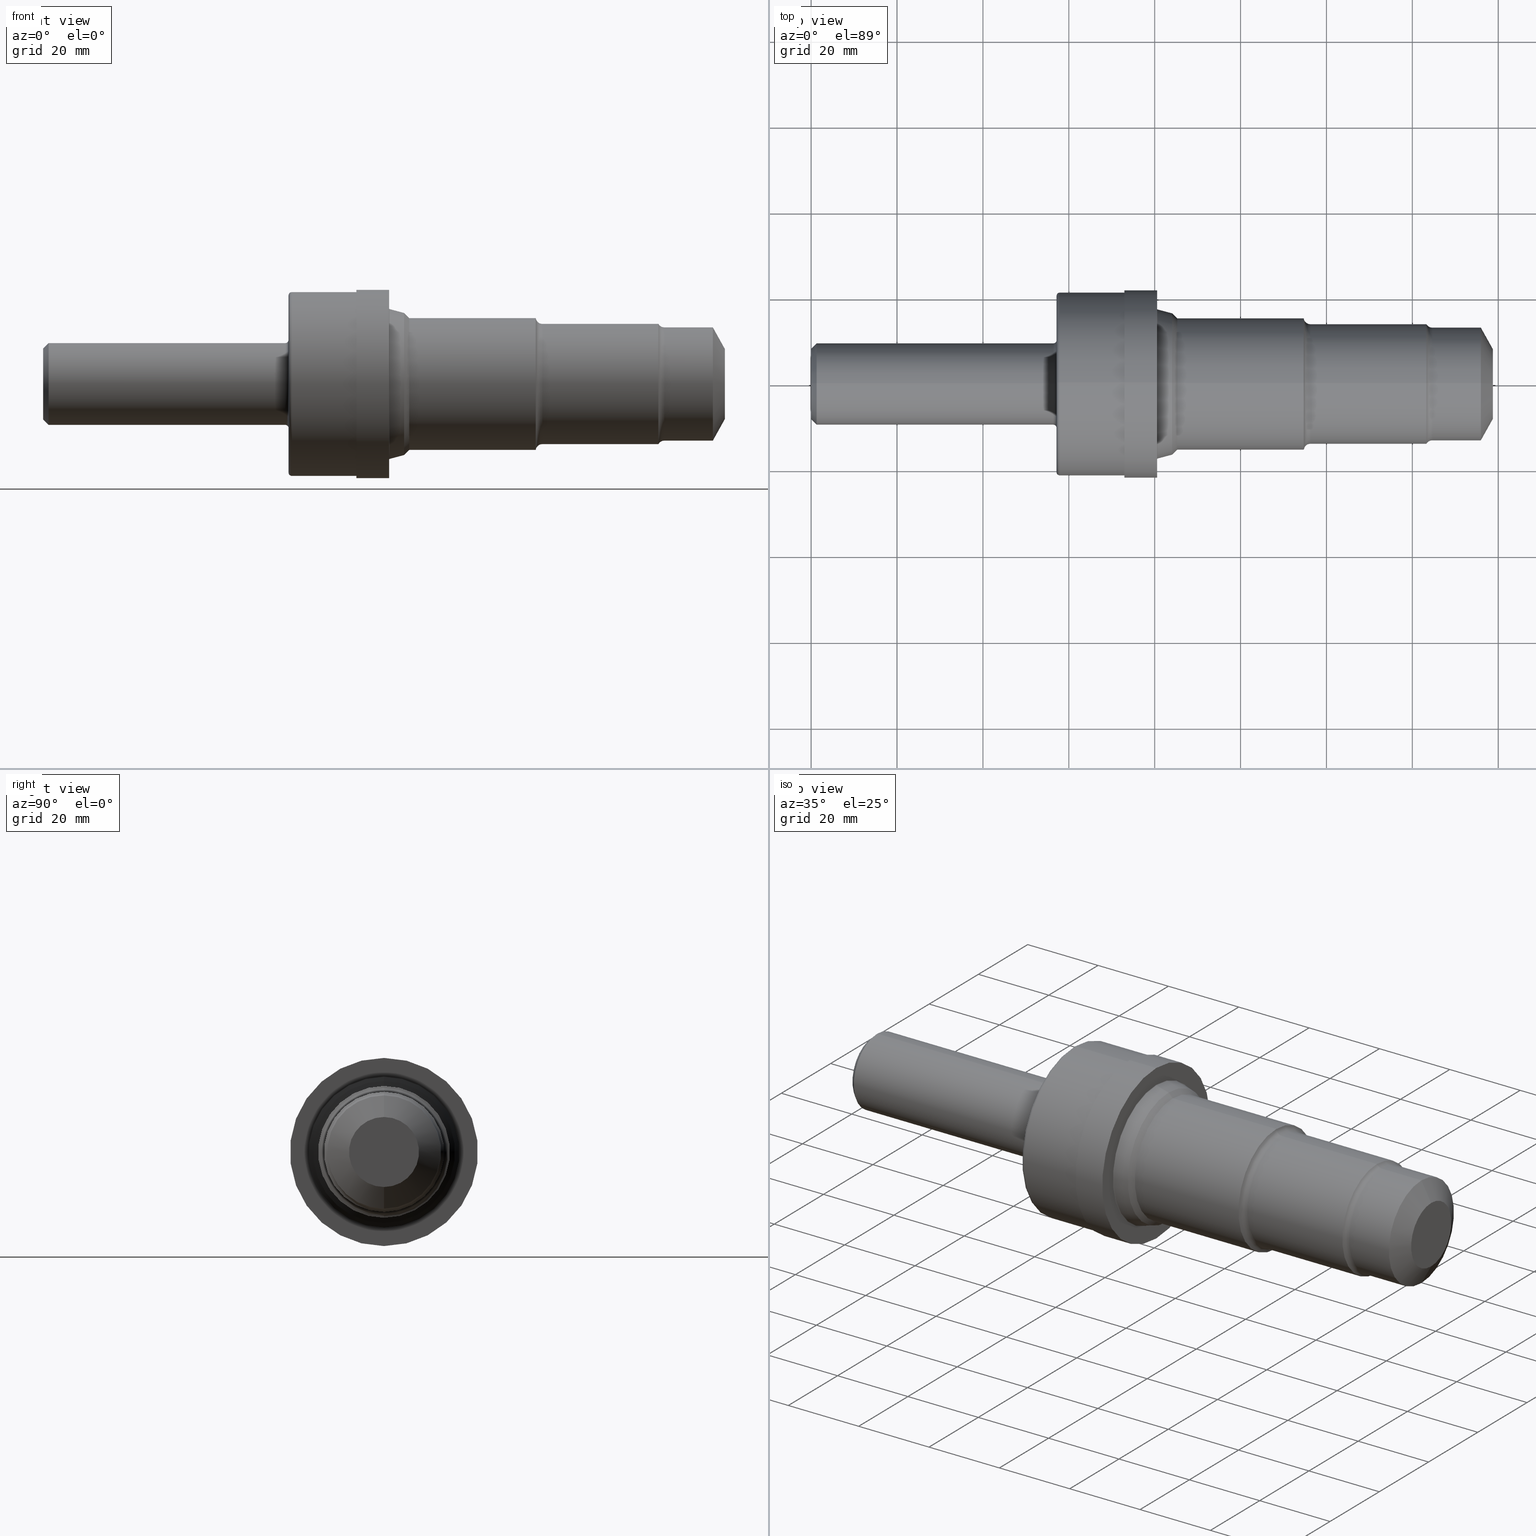
[diagram: canonical four-view strip — front | top / right | iso, engineering-drawing reading convention]
A machine part, canonical four-view strip (front | top / right | iso — engineering-drawing reading convention). The complete STEP part file that produces these views, byte-faithful:
ISO-10303-21;
HEADER;
FILE_DESCRIPTION (( 'STEP AP214' ),
    '1' );
FILE_NAME ('C-16-3-ROUGH-X8.STEP',
    '2020-02-03T22:20:44',
    ( '' ),
    ( '' ),
    'SwSTEP 2.0',
    'SolidWorks 2018',
    '' );
FILE_SCHEMA (( 'AUTOMOTIVE_DESIGN' ));
ENDSEC;

DATA;
#1 = CARTESIAN_POINT ( 'NONE',  ( 0.0000000000000000000, 1.056257864264592206E-16, -0.8625000000000000444 ) ) ;
#2 = AXIS2_PLACEMENT_3D ( 'NONE', #835, #830, #314 ) ;
#3 = EDGE_CURVE ( 'NONE', #258, #892, #356, .T. ) ;
#4 = PRODUCT_DEFINITION_FORMATION_WITH_SPECIFIED_SOURCE ( 'ANY', '', #264, .NOT_KNOWN. ) ;
#5 = ORIENTED_EDGE ( 'NONE', *, *, #702, .T. ) ;
#6 = ORIENTED_EDGE ( 'NONE', *, *, #497, .F. ) ;
#7 = CARTESIAN_POINT ( 'NONE',  ( 0.0000000000000000000, 0.0000000000000000000, 0.6045000000000000373 ) ) ;
#8 = ORIENTED_EDGE ( 'NONE', *, *, #888, .T. ) ;
#9 = TOROIDAL_SURFACE ( 'NONE', #534, 0.6941386159038315240, 0.007999999999999691386 ) ;
#10 = AXIS2_PLACEMENT_3D ( 'NONE', #510, #823, #736 ) ;
#11 = EDGE_CURVE ( 'NONE', #197, #498, #913, .T. ) ;
#12 = EDGE_LOOP ( 'NONE', ( #230, #833, #662, #190 ) ) ;
#13 = SURFACE_STYLE_USAGE ( .BOTH. , #384 ) ;
#14 = EDGE_LOOP ( 'NONE', ( #623, #467, #127, #663 ) ) ;
#15 = CARTESIAN_POINT ( 'NONE',  ( 0.0000000000000000000, 0.0000000000000000000, 0.0000000000000000000 ) ) ;
#16 = EDGE_CURVE ( 'NONE', #498, #197, #157, .T. ) ;
#17 = CIRCLE ( 'NONE', #626, 0.5509000000000000563 ) ;
#18 = ORIENTED_EDGE ( 'NONE', *, *, #198, .F. ) ;
#19 = DIRECTION ( 'NONE',  ( -1.000000000000000000, -0.0000000000000000000, -0.0000000000000000000 ) ) ;
#20 = AXIS2_PLACEMENT_3D ( 'NONE', #15, #247, #102 ) ;
#21 = VECTOR ( 'NONE', #827, 39.37007874015748854 ) ;
#22 = DIRECTION ( 'NONE',  ( 0.0000000000000000000, 0.0000000000000000000, 1.000000000000000000 ) ) ;
#23 = CARTESIAN_POINT ( 'NONE',  ( 3.310000000000000497, 8.189422687484781265E-17, -0.6510230114445050287 ) ) ;
#24 = DIRECTION ( 'NONE',  ( 1.000000000000000000, 0.0000000000000000000, 0.0000000000000000000 ) ) ;
#25 = PRODUCT_DEFINITION_SHAPE ( 'NONE', 'NONE',  #226 ) ;
#26 = DIRECTION ( 'NONE',  ( 0.0000000000000000000, 0.0000000000000000000, 1.000000000000000000 ) ) ;
#27 = CONICAL_SURFACE ( 'NONE', #883, 0.3748500000000000165, 0.7853981633974463916 ) ;
#28 = DIRECTION ( 'NONE',  ( 0.0000000000000000000, 0.0000000000000000000, -1.000000000000000000 ) ) ;
#29 = ORIENTED_EDGE ( 'NONE', *, *, #584, .T. ) ;
#30 = EDGE_CURVE ( 'NONE', #197, #34, #539, .T. ) ;
#31 = ADVANCED_FACE ( 'NONE', ( #889 ), #116, .T. ) ;
#32 = ORIENTED_EDGE ( 'NONE', *, *, #121, .F. ) ;
#33 = ORIENTED_EDGE ( 'NONE', *, *, #713, .F. ) ;
#34 = VERTEX_POINT ( 'NONE', #536 ) ;
#35 = CONICAL_SURFACE ( 'NONE', #254, 0.6510230114445050287, 0.2617993877991517948 ) ;
#36 = EDGE_CURVE ( 'NONE', #123, #223, #493, .T. ) ;
#37 = CARTESIAN_POINT ( 'NONE',  ( 5.694979162646339077, 0.0000000000000000000, 0.0000000000000000000 ) ) ;
#38 = CARTESIAN_POINT ( 'NONE',  ( 0.05000000000000000278, 0.0000000000000000000, 0.0000000000000000000 ) ) ;
#39 = CYLINDRICAL_SURFACE ( 'NONE', #450, 0.3748500000000002386 ) ;
#40 = AXIS2_PLACEMENT_3D ( 'NONE', #665, #158, #558 ) ;
#41 = CYLINDRICAL_SURFACE ( 'NONE', #721, 0.5508999999999999453 ) ;
#42 = AXIS2_PLACEMENT_3D ( 'NONE', #111, #408, #776 ) ;
#43 = ADVANCED_FACE ( 'NONE', ( #136 ), #869, .T. ) ;
#44 = CARTESIAN_POINT ( 'NONE',  ( 2.250000000000000000, 0.0000000000000000000, 0.8125000000000000000 ) ) ;
#45 = LINE ( 'NONE', #587, #810 ) ;
#46 = AXIS2_PLACEMENT_3D ( 'NONE', #529, #19, #458 ) ;
#47 = CARTESIAN_POINT ( 'NONE',  ( 2.250000000000000000, 4.957982566348066292E-17, -0.4048500000000005983 ) ) ;
#48 = ADVANCED_FACE ( 'NONE', ( #310 ), #705, .F. ) ;
#49 = ORIENTED_EDGE ( 'NONE', *, *, #658, .F. ) ;
#50 = EDGE_LOOP ( 'NONE', ( #108, #73 ) ) ;
#51 = CARTESIAN_POINT ( 'NONE',  ( 3.180000000000000604, 8.500746341312013096E-17, -0.6941386159038315240 ) ) ;
#52 = SURFACE_STYLE_FILL_AREA ( #216 ) ;
#53 = EDGE_LOOP ( 'NONE', ( #777, #379, #921, #906 ) ) ;
#54 = AXIS2_PLACEMENT_3D ( 'NONE', #748, #740, #812 ) ;
#55 = ORIENTED_EDGE ( 'NONE', *, *, #822, .F. ) ;
#56 = CARTESIAN_POINT ( 'NONE',  ( 2.220000000000000195, 0.0000000000000000000, 0.0000000000000000000 ) ) ;
#57 = AXIS2_PLACEMENT_3D ( 'NONE', #583, #532, #941 ) ;
#58 = ORIENTED_EDGE ( 'NONE', *, *, #853, .T. ) ;
#59 = VECTOR ( 'NONE', #387, 39.37007874015748143 ) ;
#60 = DIRECTION ( 'NONE',  ( 0.0000000000000000000, 0.0000000000000000000, 1.000000000000000000 ) ) ;
#61 = DIRECTION ( 'NONE',  ( 0.0000000000000000000, 0.0000000000000000000, 1.000000000000000000 ) ) ;
#62 = CARTESIAN_POINT ( 'NONE',  ( 4.577428332225449203, 0.0000000000000000000, 0.0000000000000000000 ) ) ;
#63 = AXIS2_PLACEMENT_3D ( 'NONE', #894, #515, #453 ) ;
#64 = CARTESIAN_POINT ( 'NONE',  ( 5.694979162646339965, 0.0000000000000000000, 0.0000000000000000000 ) ) ;
#65 = EDGE_CURVE ( 'NONE', #818, #842, #728, .T. ) ;
#66 = DIRECTION ( 'NONE',  ( -1.000000000000000000, -0.0000000000000000000, -0.0000000000000000000 ) ) ;
#67 = FACE_OUTER_BOUND ( 'NONE', #369, .T. ) ;
#68 = DIRECTION ( 'NONE',  ( 0.0000000000000000000, 0.0000000000000000000, 1.000000000000000000 ) ) ;
#69 = CARTESIAN_POINT ( 'NONE',  ( 6.250000000000000000, 0.0000000000000000000, 0.3209547469201429193 ) ) ;
#70 = TOROIDAL_SURFACE ( 'NONE', #232, 0.4048500000000005983, 0.02999999999999988440 ) ;
#71 = DIRECTION ( 'NONE',  ( -1.000000000000000000, -0.0000000000000000000, -0.0000000000000000000 ) ) ;
#72 = ORIENTED_EDGE ( 'NONE', *, *, #132, .T. ) ;
#73 = ORIENTED_EDGE ( 'NONE', *, *, #36, .T. ) ;
#74 = CARTESIAN_POINT ( 'NONE',  ( 0.05000000000000000278, 4.590588526603853748E-17, 0.3748500000000000165 ) ) ;
#75 = VERTEX_POINT ( 'NONE', #870 ) ;
#76 = APPLICATION_PROTOCOL_DEFINITION ( 'draft international standard', 'automotive_design', 1998, #98 ) ;
#77 = CARTESIAN_POINT ( 'NONE',  ( 0.05000000000000000278, 0.0000000000000000000, 0.0000000000000000000 ) ) ;
#78 = DIRECTION ( 'NONE',  ( -0.0000000000000000000, 0.0000000000000000000, 1.000000000000000000 ) ) ;
#79 = FILL_AREA_STYLE_COLOUR ( '', #815 ) ;
#80 = CIRCLE ( 'NONE', #851, 0.3748500000000000165 ) ;
#81 = ORIENTED_EDGE ( 'NONE', *, *, #751, .F. ) ;
#82 = ORIENTED_EDGE ( 'NONE', *, *, #409, .T. ) ;
#83 = PLANE ( 'NONE',  #630 ) ;
#84 = AXIS2_PLACEMENT_3D ( 'NONE', #319, #456, #535 ) ;
#85 = EDGE_CURVE ( 'NONE', #34, #521, #677, .T. ) ;
#86 = ORIENTED_EDGE ( 'NONE', *, *, #763, .T. ) ;
#87 = FACE_OUTER_BOUND ( 'NONE', #632, .T. ) ;
#88 = DIRECTION ( 'NONE',  ( 0.0000000000000000000, 0.0000000000000000000, 1.000000000000000000 ) ) ;
#89 = CARTESIAN_POINT ( 'NONE',  ( 4.516000000000000902, 0.0000000000000000000, 0.0000000000000000000 ) ) ;
#90 = CARTESIAN_POINT ( 'NONE',  ( 0.05000000000000000278, 0.0000000000000000000, 0.0000000000000000000 ) ) ;
#91 = ORIENTED_EDGE ( 'NONE', *, *, #856, .F. ) ;
#92 = VERTEX_POINT ( 'NONE', #435 ) ;
#93 = DIRECTION ( 'NONE',  ( 0.0000000000000000000, 0.0000000000000000000, 1.000000000000000000 ) ) ;
#94 = CIRCLE ( 'NONE', #480, 0.8125000000000000000 ) ;
#95 = DIRECTION ( 'NONE',  ( -1.000000000000000000, -0.0000000000000000000, -0.0000000000000000000 ) ) ;
#96 = CIRCLE ( 'NONE', #280, 0.8625000000000000444 ) ;
#97 = AXIS2_PLACEMENT_3D ( 'NONE', #724, #680, #88 ) ;
#98 = APPLICATION_CONTEXT ( 'automotive_design' ) ;
#99 = EDGE_CURVE ( 'NONE', #892, #258, #96, .T. ) ;
#100 = AXIS2_PLACEMENT_3D ( 'NONE', #305, #571, #575 ) ;
#101 = CARTESIAN_POINT ( 'NONE',  ( 3.180000000000000604, 0.0000000000000000000, 0.0000000000000000000 ) ) ;
#102 = DIRECTION ( 'NONE',  ( 0.0000000000000000000, 0.0000000000000000000, 1.000000000000000000 ) ) ;
#103 = ORIENTED_EDGE ( 'NONE', *, *, #621, .T. ) ;
#104 = AXIS2_PLACEMENT_3D ( 'NONE', #378, #577, #585 ) ;
#105 = AXIS2_PLACEMENT_3D ( 'NONE', #306, #671, #875 ) ;
#106 = LINE ( 'NONE', #7, #858 ) ;
#107 = AXIS2_PLACEMENT_3D ( 'NONE', #364, #556, #654 ) ;
#108 = ORIENTED_EDGE ( 'NONE', *, *, #600, .T. ) ;
#109 = AXIS2_PLACEMENT_3D ( 'NONE', #89, #437, #235 ) ;
#110 = FACE_BOUND ( 'NONE', #50, .T. ) ;
#111 = CARTESIAN_POINT ( 'NONE',  ( 5.694979162646339077, 0.0000000000000000000, 0.0000000000000000000 ) ) ;
#112 = DIRECTION ( 'NONE',  ( -1.000000000000000000, -0.0000000000000000000, -0.0000000000000000000 ) ) ;
#113 = VERTEX_POINT ( 'NONE', #44 ) ;
#114 = CARTESIAN_POINT ( 'NONE',  ( 6.250000000000000000, 0.0000000000000000000, 0.0000000000000000000 ) ) ;
#115 = VECTOR ( 'NONE', #196, 39.37007874015748143 ) ;
#116 = CONICAL_SURFACE ( 'NONE', #948, 0.3209547469201429193, 1.064650843716543616 ) ;
#117 = DIRECTION ( 'NONE',  ( 0.7071067811865489050, 0.0000000000000000000, -0.7071067811865461294 ) ) ;
#118 = ORIENTED_EDGE ( 'NONE', *, *, #902, .F. ) ;
#119 = DIRECTION ( 'NONE',  ( 0.0000000000000000000, 0.0000000000000000000, 1.000000000000000000 ) ) ;
#120 = CARTESIAN_POINT ( 'NONE',  ( 2.220000000000000195, 0.0000000000000000000, 0.0000000000000000000 ) ) ;
#121 = EDGE_CURVE ( 'NONE', #521, #933, #477, .T. ) ;
#122 = ADVANCED_FACE ( 'NONE', ( #517 ), #651, .F. ) ;
#123 = VERTEX_POINT ( 'NONE', #494 ) ;
#124 = DIRECTION ( 'NONE',  ( 0.0000000000000000000, 0.0000000000000000000, 1.000000000000000000 ) ) ;
#125 = CIRCLE ( 'NONE', #650, 0.8424999999999999156 ) ;
#126 = ADVANCED_FACE ( 'NONE', ( #828 ), #244, .T. ) ;
#127 = ORIENTED_EDGE ( 'NONE', *, *, #30, .T. ) ;
#128 = DIRECTION ( 'NONE',  ( 0.0000000000000000000, 0.0000000000000000000, 1.000000000000000000 ) ) ;
#129 = CARTESIAN_POINT ( 'NONE',  ( 0.0000000000000000000, 1.031764928281644949E-16, -0.8424999999999999156 ) ) ;
#130 = FACE_OUTER_BOUND ( 'NONE', #200, .T. ) ;
#131 = DIRECTION ( 'NONE',  ( 0.0000000000000000000, 0.0000000000000000000, 1.000000000000000000 ) ) ;
#132 = EDGE_CURVE ( 'NONE', #92, #414, #432, .T. ) ;
#133 = CARTESIAN_POINT ( 'NONE',  ( 0.0000000000000000000, 0.0000000000000000000, 0.0000000000000000000 ) ) ;
#134 = ORIENTED_EDGE ( 'NONE', *, *, #621, .F. ) ;
#135 = LINE ( 'NONE', #220, #703 ) ;
#136 = FACE_OUTER_BOUND ( 'NONE', #365, .T. ) ;
#137 = EDGE_CURVE ( 'NONE', #324, #231, #622, .T. ) ;
#138 = VERTEX_POINT ( 'NONE', #346 ) ;
#139 = DIRECTION ( 'NONE',  ( 0.0000000000000000000, -1.000000000000000000, 0.0000000000000000000 ) ) ;
#140 = CARTESIAN_POINT ( 'NONE',  ( 2.279999999999999805, 9.950255243072245579E-17, -0.8125000000000000000 ) ) ;
#141 = DIRECTION ( 'NONE',  ( -1.000000000000000000, -0.0000000000000000000, -0.0000000000000000000 ) ) ;
#142 = DIRECTION ( 'NONE',  ( -1.000000000000000000, -0.0000000000000000000, -0.0000000000000000000 ) ) ;
#143 = DIRECTION ( 'NONE',  ( 0.0000000000000000000, 0.0000000000000000000, 1.000000000000000000 ) ) ;
#144 = EDGE_LOOP ( 'NONE', ( #750, #739, #850, #511 ) ) ;
#145 = CIRCLE ( 'NONE', #109, 0.6045000000000000373 ) ;
#146 = VERTEX_POINT ( 'NONE', #905 ) ;
#147 = UNCERTAINTY_MEASURE_WITH_UNIT (LENGTH_MEASURE( 1.000000000000000082E-05 ), #499, 'distance_accuracy_value', 'NONE');
#148 = AXIS2_PLACEMENT_3D ( 'NONE', #568, #540, #252 ) ;
#149 = CARTESIAN_POINT ( 'NONE',  ( 0.0000000000000000000, 4.284426826817016740E-17, 0.3248500000000002497 ) ) ;
#150 = VECTOR ( 'NONE', #410, 39.37007874015748143 ) ;
#151 = CARTESIAN_POINT ( 'NONE',  ( 3.356523011444505045, 0.0000000000000000000, 0.6045000000000000373 ) ) ;
#152 = DIRECTION ( 'NONE',  ( 0.0000000000000000000, -1.000000000000000000, 0.0000000000000000000 ) ) ;
#153 = AXIS2_PLACEMENT_3D ( 'NONE', #667, #655, #347 ) ;
#154 = EDGE_CURVE ( 'NONE', #271, #730, #269, .T. ) ;
#155 = DIRECTION ( 'NONE',  ( -1.000000000000000000, -0.0000000000000000000, -0.0000000000000000000 ) ) ;
#156 = AXIS2_PLACEMENT_3D ( 'NONE', #649, #638, #171 ) ;
#157 = CIRCLE ( 'NONE', #897, 0.3209547469201429193 ) ;
#158 = DIRECTION ( 'NONE',  ( 1.000000000000000000, 0.0000000000000000000, 0.0000000000000000000 ) ) ;
#159 = AXIS2_PLACEMENT_3D ( 'NONE', #629, #699, #857 ) ;
#160 = LINE ( 'NONE', #947, #734 ) ;
#161 = ADVANCED_FACE ( 'NONE', ( #452 ), #217, .T. ) ;
#162 = VERTEX_POINT ( 'NONE', #549 ) ;
#163 = APPLICATION_CONTEXT ( 'automotive_design' ) ;
#164 = AXIS2_PLACEMENT_3D ( 'NONE', #934, #863, #914 ) ;
#165 = CARTESIAN_POINT ( 'NONE',  ( 2.872000000000000330, 0.0000000000000000000, 0.0000000000000000000 ) ) ;
#166 = EDGE_LOOP ( 'NONE', ( #707, #683, #696, #320 ) ) ;
#167 = FACE_OUTER_BOUND ( 'NONE', #551, .T. ) ;
#168 = CARTESIAN_POINT ( 'NONE',  ( 4.516000000000000902, 0.0000000000000000000, 0.6045000000000000373 ) ) ;
#169 = ORIENTED_EDGE ( 'NONE', *, *, #65, .F. ) ;
#170 = ORIENTED_EDGE ( 'NONE', *, *, #524, .F. ) ;
#171 = DIRECTION ( 'NONE',  ( 0.0000000000000000000, 0.0000000000000000000, -1.000000000000000000 ) ) ;
#172 = FACE_OUTER_BOUND ( 'NONE', #229, .T. ) ;
#173 = DIMENSIONAL_EXPONENTS ( 1.000000000000000000, 0.0000000000000000000, 0.0000000000000000000, 0.0000000000000000000, 0.0000000000000000000, 0.0000000000000000000, 0.0000000000000000000 ) ;
#174 = CARTESIAN_POINT ( 'NONE',  ( 2.250000000000000000, 0.0000000000000000000, 0.0000000000000000000 ) ) ;
#175 = CLOSED_SHELL ( 'NONE', ( #848, #555, #764, #178, #775, #313, #698, #547, #122, #257, #189, #592, #184, #770, #411, #899, #161, #627, #316, #758, #401, #483, #332, #43, #789, #896, #845, #126, #891, #48, #716, #340, #907, #31, #916 ) ) ;
#176 = CARTESIAN_POINT ( 'NONE',  ( 6.140000000000000568, 0.0000000000000000000, 0.0000000000000000000 ) ) ;
#177 = VERTEX_POINT ( 'NONE', #181 ) ;
#178 = ADVANCED_FACE ( 'NONE', ( #849 ), #41, .T. ) ;
#179 = ORIENTED_EDGE ( 'NONE', *, *, #524, .T. ) ;
#180 = VECTOR ( 'NONE', #755, 39.37007874015748854 ) ;
#181 = CARTESIAN_POINT ( 'NONE',  ( 3.310000000000000497, 0.0000000000000000000, 0.6510230114445050287 ) ) ;
#182 = EDGE_LOOP ( 'NONE', ( #433, #478, #134, #270 ) ) ;
#183 = CARTESIAN_POINT ( 'NONE',  ( 3.356523011444505045, 0.0000000000000000000, 0.0000000000000000000 ) ) ;
#184 = ADVANCED_FACE ( 'NONE', ( #413 ), #70, .F. ) ;
#185 = CYLINDRICAL_SURFACE ( 'NONE', #596, 0.8424999999999999156 ) ;
#186 = EDGE_CURVE ( 'NONE', #75, #138, #598, .T. ) ;
#187 = ORIENTED_EDGE ( 'NONE', *, *, #154, .F. ) ;
#188 = ORIENTED_EDGE ( 'NONE', *, *, #915, .F. ) ;
#189 = ADVANCED_FACE ( 'NONE', ( #784 ), #185, .T. ) ;
#190 = ORIENTED_EDGE ( 'NONE', *, *, #30, .F. ) ;
#191 = VECTOR ( 'NONE', #472, 39.37007874015748143 ) ;
#192 = DIRECTION ( 'NONE',  ( -1.000000000000000000, -0.0000000000000000000, -0.0000000000000000000 ) ) ;
#193 = EDGE_CURVE ( 'NONE', #730, #231, #389, .T. ) ;
#194 = AXIS2_PLACEMENT_3D ( 'NONE', #37, #351, #318 ) ;
#195 = ORIENTED_EDGE ( 'NONE', *, *, #782, .T. ) ;
#196 = DIRECTION ( 'NONE',  ( -0.4848096202463347826, 1.071100224819458088E-16, -0.8746197071393970734 ) ) ;
#197 = VERTEX_POINT ( 'NONE', #343 ) ;
#198 = EDGE_CURVE ( 'NONE', #231, #324, #572, .T. ) ;
#199 = DIRECTION ( 'NONE',  ( 0.0000000000000000000, 0.0000000000000000000, 1.000000000000000000 ) ) ;
#200 = EDGE_LOOP ( 'NONE', ( #737, #438, #496, #607 ) ) ;
#201 = DIRECTION ( 'NONE',  ( 0.0000000000000000000, 0.0000000000000000000, 1.000000000000000000 ) ) ;
#202 = EDGE_LOOP ( 'NONE', ( #574, #807 ) ) ;
#203 = DIRECTION ( 'NONE',  ( 0.0000000000000000000, 0.0000000000000000000, 1.000000000000000000 ) ) ;
#204 = AXIS2_PLACEMENT_3D ( 'NONE', #778, #796, #338 ) ;
#205 = EDGE_LOOP ( 'NONE', ( #81, #5, #686, #266 ) ) ;
#206 = DIRECTION ( 'NONE',  ( 0.0000000000000000000, -1.000000000000000000, 0.0000000000000000000 ) ) ;
#207 = EDGE_LOOP ( 'NONE', ( #406, #903, #8, #505 ) ) ;
#208 = LINE ( 'NONE', #151, #180 ) ;
#209 = CARTESIAN_POINT ( 'NONE',  ( 5.694979162646339965, 7.120096490242710325E-17, -0.5814000000000000279 ) ) ;
#210 = CARTESIAN_POINT ( 'NONE',  ( 3.180000000000000604, 0.0000000000000000000, 0.6941386159038315240 ) ) ;
#211 = AXIS2_PLACEMENT_3D ( 'NONE', #38, #24, #28 ) ;
#212 = CARTESIAN_POINT ( 'NONE',  ( 0.0000000000000000000, 0.0000000000000000000, -0.3248500000000002497 ) ) ;
#213 = EDGE_CURVE ( 'NONE', #508, #485, #945, .T. ) ;
#214 = ORIENTED_EDGE ( 'NONE', *, *, #822, .T. ) ;
#215 = DIRECTION ( 'NONE',  ( -0.0000000000000000000, 1.000000000000000000, 1.224646799147353207E-16 ) ) ;
#216 = FILL_AREA_STYLE ('',( #79 ) ) ;
#217 = CONICAL_SURFACE ( 'NONE', #211, 0.3748500000000000165, 0.7853981633974463916 ) ;
#218 = AXIS2_PLACEMENT_3D ( 'NONE', #615, #465, #866 ) ;
#219 = ORIENTED_EDGE ( 'NONE', *, *, #286, .F. ) ;
#220 = CARTESIAN_POINT ( 'NONE',  ( 0.0000000000000000000, 0.0000000000000000000, 0.8424999999999999156 ) ) ;
#221 =( LENGTH_UNIT ( ) NAMED_UNIT ( * ) SI_UNIT ( $, .METRE. ) );
#222 = LINE ( 'NONE', #428, #150 ) ;
#223 = VERTEX_POINT ( 'NONE', #936 ) ;
#224 = AXIS2_PLACEMENT_3D ( 'NONE', #176, #276, #342 ) ;
#225 = DIRECTION ( 'NONE',  ( 1.000000000000000000, 0.0000000000000000000, 0.0000000000000000000 ) ) ;
#226 = PRODUCT_DEFINITION ( 'UNKNOWN', '', #4, #834 ) ;
#227 = ORIENTED_EDGE ( 'NONE', *, *, #729, .F. ) ;
#228 = LINE ( 'NONE', #74, #422 ) ;
#229 = EDGE_LOOP ( 'NONE', ( #33, #506, #466, #311 ) ) ;
#230 = ORIENTED_EDGE ( 'NONE', *, *, #11, .T. ) ;
#231 = VERTEX_POINT ( 'NONE', #402 ) ;
#232 = AXIS2_PLACEMENT_3D ( 'NONE', #120, #780, #852 ) ;
#233 = DIRECTION ( 'NONE',  ( -1.000000000000000000, -0.0000000000000000000, -0.0000000000000000000 ) ) ;
#234 = EDGE_CURVE ( 'NONE', #34, #910, #761, .T. ) ;
#235 = DIRECTION ( 'NONE',  ( 0.0000000000000000000, 0.0000000000000000000, 1.000000000000000000 ) ) ;
#236 =( NAMED_UNIT ( * ) SI_UNIT ( $, .STERADIAN. ) SOLID_ANGLE_UNIT ( ) );
#237 = ORIENTED_EDGE ( 'NONE', *, *, #36, .F. ) ;
#238 = EDGE_LOOP ( 'NONE', ( #219, #86, #922, #49 ) ) ;
#239 = CIRCLE ( 'NONE', #300, 0.007999999999999750366 ) ;
#240 = DIRECTION ( 'NONE',  ( 0.0000000000000000000, 0.0000000000000000000, 1.000000000000000000 ) ) ;
#241 = EDGE_CURVE ( 'NONE', #277, #289, #17, .T. ) ;
#242 = CARTESIAN_POINT ( 'NONE',  ( 0.0000000000000000000, 0.0000000000000000000, 0.0000000000000000000 ) ) ;
#243 = DIRECTION ( 'NONE',  ( -1.000000000000000000, -0.0000000000000000000, -0.0000000000000000000 ) ) ;
#244 = CONICAL_SURFACE ( 'NONE', #642, 0.6045000000000000373, 0.7853981633974504994 ) ;
#245 = AXIS2_PLACEMENT_3D ( 'NONE', #249, #526, #93 ) ;
#246 = CARTESIAN_POINT ( 'NONE',  ( 3.172000000000000597, 1.056257864264592206E-16, -0.8625000000000000444 ) ) ;
#247 = DIRECTION ( 'NONE',  ( -1.000000000000000000, -0.0000000000000000000, -0.0000000000000000000 ) ) ;
#248 = ORIENTED_EDGE ( 'NONE', *, *, #415, .T. ) ;
#249 = CARTESIAN_POINT ( 'NONE',  ( 0.0000000000000000000, 0.0000000000000000000, 0.0000000000000000000 ) ) ;
#250 = ORIENTED_EDGE ( 'NONE', *, *, #487, .F. ) ;
#251 = AXIS2_PLACEMENT_3D ( 'NONE', #51, #591, #675 ) ;
#252 = DIRECTION ( 'NONE',  ( 0.0000000000000000000, 0.0000000000000000000, 1.000000000000000000 ) ) ;
#253 = CARTESIAN_POINT ( 'NONE',  ( 2.220000000000000195, 0.0000000000000000000, 0.0000000000000000000 ) ) ;
#254 = AXIS2_PLACEMENT_3D ( 'NONE', #284, #537, #61 ) ;
#255 = CARTESIAN_POINT ( 'NONE',  ( 6.140000000000000568, 0.0000000000000000000, 0.0000000000000000000 ) ) ;
#256 = FACE_OUTER_BOUND ( 'NONE', #464, .T. ) ;
#257 = ADVANCED_FACE ( 'NONE', ( #167 ), #527, .T. ) ;
#258 = VERTEX_POINT ( 'NONE', #695 ) ;
#259 = CARTESIAN_POINT ( 'NONE',  ( 3.356523011444505045, 0.0000000000000000000, 0.0000000000000000000 ) ) ;
#260 = AXIS2_PLACEMENT_3D ( 'NONE', #783, #692, #715 ) ;
#261 = EDGE_CURVE ( 'NONE', #177, #929, #371, .T. ) ;
#262 = FACE_OUTER_BOUND ( 'NONE', #459, .T. ) ;
#263 = PRESENTATION_LAYER_ASSIGNMENT (  '', '', ( #363 ) ) ;
#264 = PRODUCT ( 'C-16-3-ROUGH-X8', 'C-16-3-ROUGH-X8', '', ( #321 ) ) ;
#265 = ORIENTED_EDGE ( 'NONE', *, *, #637, .T. ) ;
#266 = ORIENTED_EDGE ( 'NONE', *, *, #829, .F. ) ;
#267 = EDGE_CURVE ( 'NONE', #792, #818, #924, .T. ) ;
#268 = CIRCLE ( 'NONE', #909, 0.6941386159038315240 ) ;
#269 = CIRCLE ( 'NONE', #618, 0.6045000000000000373 ) ;
#270 = ORIENTED_EDGE ( 'NONE', *, *, #584, .F. ) ;
#271 = VERTEX_POINT ( 'NONE', #168 ) ;
#272 = VERTEX_POINT ( 'NONE', #322 ) ;
#273 = ORIENTED_EDGE ( 'NONE', *, *, #132, .F. ) ;
#274 = FACE_OUTER_BOUND ( 'NONE', #420, .T. ) ;
#275 = EDGE_LOOP ( 'NONE', ( #491, #214 ) ) ;
#276 = DIRECTION ( 'NONE',  ( -1.000000000000000000, -0.0000000000000000000, -0.0000000000000000000 ) ) ;
#277 = VERTEX_POINT ( 'NONE', #461 ) ;
#278 = CIRCLE ( 'NONE', #323, 0.6864112092935192866 ) ;
#279 =( LENGTH_UNIT ( ) NAMED_UNIT ( * ) SI_UNIT ( $, .METRE. ) );
#280 = AXIS2_PLACEMENT_3D ( 'NONE', #394, #326, #400 ) ;
#281 = DIRECTION ( 'NONE',  ( -0.0000000000000000000, 1.000000000000000000, 1.224646799147353207E-16 ) ) ;
#282 = DIRECTION ( 'NONE',  ( -1.000000000000000000, -0.0000000000000000000, -0.0000000000000000000 ) ) ;
#283 = VERTEX_POINT ( 'NONE', #391 ) ;
#284 = CARTESIAN_POINT ( 'NONE',  ( 3.310000000000000497, 0.0000000000000000000, 0.0000000000000000000 ) ) ;
#285 = CYLINDRICAL_SURFACE ( 'NONE', #861, 0.5194000000000000838 ) ;
#286 = EDGE_CURVE ( 'NONE', #730, #271, #145, .T. ) ;
#287 = VECTOR ( 'NONE', #292, 39.37007874015748143 ) ;
#288 = CARTESIAN_POINT ( 'NONE',  ( 6.250000000000000000, 3.930562034869018120E-17, -0.3209547469201429193 ) ) ;
#289 = VERTEX_POINT ( 'NONE', #886 ) ;
#290 = ORIENTED_EDGE ( 'NONE', *, *, #137, .T. ) ;
#291 = DIRECTION ( 'NONE',  ( -1.000000000000000000, -0.0000000000000000000, -0.0000000000000000000 ) ) ;
#292 = DIRECTION ( 'NONE',  ( -1.000000000000000000, -0.0000000000000000000, -0.0000000000000000000 ) ) ;
#293 = AXIS2_PLACEMENT_3D ( 'NONE', #445, #725, #201 ) ;
#294 = PLANE ( 'NONE',  #40 ) ;
#295 = CARTESIAN_POINT ( 'NONE',  ( 2.250000000000000000, 0.0000000000000000000, 0.0000000000000000000 ) ) ;
#296 = CIRCLE ( 'NONE', #104, 0.3248500000000002497 ) ;
#297 = ORIENTED_EDGE ( 'NONE', *, *, #920, .F. ) ;
#298 =( NAMED_UNIT ( * ) SI_UNIT ( $, .STERADIAN. ) SOLID_ANGLE_UNIT ( ) );
#299 = EDGE_CURVE ( 'NONE', #563, #414, #548, .T. ) ;
#300 = AXIS2_PLACEMENT_3D ( 'NONE', #210, #449, #767 ) ;
#301 = DIRECTION ( 'NONE',  ( 0.0000000000000000000, 0.0000000000000000000, 1.000000000000000000 ) ) ;
#302 = ORIENTED_EDGE ( 'NONE', *, *, #396, .F. ) ;
#303 = FACE_OUTER_BOUND ( 'NONE', #238, .T. ) ;
#304 = CARTESIAN_POINT ( 'NONE',  ( 2.872000000000000330, 0.0000000000000000000, 0.8424999999999999156 ) ) ;
#305 = CARTESIAN_POINT ( 'NONE',  ( 4.577428332225449203, 0.0000000000000000000, 0.0000000000000000000 ) ) ;
#306 = CARTESIAN_POINT ( 'NONE',  ( 6.250000000000000000, 0.0000000000000000000, 0.0000000000000000000 ) ) ;
#307 = LINE ( 'NONE', #288, #115 ) ;
#308 = DIRECTION ( 'NONE',  ( 1.000000000000000000, 0.0000000000000000000, 0.0000000000000000000 ) ) ;
#309 = AXIS2_PLACEMENT_3D ( 'NONE', #64, #813, #939 ) ;
#310 = FACE_OUTER_BOUND ( 'NONE', #918, .T. ) ;
#311 = ORIENTED_EDGE ( 'NONE', *, *, #935, .F. ) ;
#312 = ORIENTED_EDGE ( 'NONE', *, *, #186, .T. ) ;
#313 = ADVANCED_FACE ( 'NONE', ( #738 ), #317, .T. ) ;
#314 = DIRECTION ( 'NONE',  ( 0.0000000000000000000, 0.0000000000000000000, 1.000000000000000000 ) ) ;
#315 = DIRECTION ( 'NONE',  ( 0.0000000000000000000, 0.0000000000000000000, 1.000000000000000000 ) ) ;
#316 = ADVANCED_FACE ( 'NONE', ( #345 ), #898, .F. ) ;
#317 = CYLINDRICAL_SURFACE ( 'NONE', #63, 0.6045000000000000373 ) ;
#318 = DIRECTION ( 'NONE',  ( 0.0000000000000000000, 0.0000000000000000000, 1.000000000000000000 ) ) ;
#319 = CARTESIAN_POINT ( 'NONE',  ( 2.220000000000000195, 4.957982566348066292E-17, -0.4048500000000005983 ) ) ;
#320 = ORIENTED_EDGE ( 'NONE', *, *, #806, .T. ) ;
#321 = PRODUCT_CONTEXT ( 'NONE', #98, 'mechanical' ) ;
#322 = CARTESIAN_POINT ( 'NONE',  ( 2.872000000000000330, 0.0000000000000000000, 0.8625000000000000444 ) ) ;
#323 = AXIS2_PLACEMENT_3D ( 'NONE', #766, #66, #541 ) ;
#324 = VERTEX_POINT ( 'NONE', #382 ) ;
#325 = LINE ( 'NONE', #774, #191 ) ;
#326 = DIRECTION ( 'NONE',  ( -1.000000000000000000, -0.0000000000000000000, -0.0000000000000000000 ) ) ;
#327 = AXIS2_PLACEMENT_3D ( 'NONE', #62, #352, #794 ) ;
#328 = DIRECTION ( 'NONE',  ( 0.0000000000000000000, -1.224646799147353700E-16, 1.000000000000000000 ) ) ;
#329 = CIRCLE ( 'NONE', #785, 0.8625000000000000444 ) ;
#330 = VECTOR ( 'NONE', #931, 39.37007874015748143 ) ;
#331 = DIRECTION ( 'NONE',  ( -1.000000000000000000, -0.0000000000000000000, -0.0000000000000000000 ) ) ;
#332 = ADVANCED_FACE ( 'NONE', ( #876, #714 ), #294, .F. ) ;
#333 = EDGE_LOOP ( 'NONE', ( #871, #645, #32, #872 ) ) ;
#334 = DIRECTION ( 'NONE',  ( -1.000000000000000000, -0.0000000000000000000, -0.0000000000000000000 ) ) ;
#335 = EDGE_CURVE ( 'NONE', #608, #162, #688, .T. ) ;
#336 = ORIENTED_EDGE ( 'NONE', *, *, #261, .T. ) ;
#337 = EDGE_LOOP ( 'NONE', ( #712, #475, #824, #926 ) ) ;
#338 = DIRECTION ( 'NONE',  ( 0.0000000000000000000, -1.224646799147353454E-16, 1.000000000000000000 ) ) ;
#339 = CIRCLE ( 'NONE', #100, 0.5508999999999999453 ) ;
#340 = ADVANCED_FACE ( 'NONE', ( #484 ), #504, .F. ) ;
#341 = CARTESIAN_POINT ( 'NONE',  ( 3.356523011444505045, 0.0000000000000000000, 0.0000000000000000000 ) ) ;
#342 = DIRECTION ( 'NONE',  ( 0.0000000000000000000, 0.0000000000000000000, 1.000000000000000000 ) ) ;
#343 = CARTESIAN_POINT ( 'NONE',  ( 6.250000000000000000, 0.0000000000000000000, 0.3209547469201429193 ) ) ;
#344 = PLANE ( 'NONE',  #156 ) ;
#345 = FACE_OUTER_BOUND ( 'NONE', #681, .T. ) ;
#346 = CARTESIAN_POINT ( 'NONE',  ( 3.177929447639180616, 0.0000000000000000000, 0.6864112092935192866 ) ) ;
#347 = DIRECTION ( 'NONE',  ( 0.0000000000000000000, 0.0000000000000000000, 1.000000000000000000 ) ) ;
#348 = AXIS2_PLACEMENT_3D ( 'NONE', #772, #701, #689 ) ;
#349 = FACE_OUTER_BOUND ( 'NONE', #423, .T. ) ;
#350 = AXIS2_PLACEMENT_3D ( 'NONE', #657, #673, #377 ) ;
#351 = DIRECTION ( 'NONE',  ( -1.000000000000000000, -0.0000000000000000000, -0.0000000000000000000 ) ) ;
#352 = DIRECTION ( 'NONE',  ( -1.000000000000000000, -0.0000000000000000000, -0.0000000000000000000 ) ) ;
#353 = EDGE_LOOP ( 'NONE', ( #336, #793, #522, #769 ) ) ;
#354 = EDGE_CURVE ( 'NONE', #271, #324, #106, .T. ) ;
#355 = DIRECTION ( 'NONE',  ( 0.0000000000000000000, 0.0000000000000000000, -1.000000000000000000 ) ) ;
#356 = CIRCLE ( 'NONE', #502, 0.8625000000000000444 ) ;
#357 = CARTESIAN_POINT ( 'NONE',  ( 3.310000000000000497, 0.0000000000000000000, 0.6510230114445050287 ) ) ;
#358 = DIRECTION ( 'NONE',  ( -1.000000000000000000, -0.0000000000000000000, -0.0000000000000000000 ) ) ;
#359 = AXIS2_PLACEMENT_3D ( 'NONE', #865, #490, #60 ) ;
#360 = CIRCLE ( 'NONE', #57, 0.8125000000000000000 ) ;
#361 = DIRECTION ( 'NONE',  ( 0.0000000000000000000, 0.0000000000000000000, 1.000000000000000000 ) ) ;
#362 = CARTESIAN_POINT ( 'NONE',  ( 4.577428332225449203, 0.0000000000000000000, 0.6129000000000001114 ) ) ;
#363 = STYLED_ITEM ( 'NONE', ( #625 ), #879 ) ;
#364 = CARTESIAN_POINT ( 'NONE',  ( 3.172000000000001041, 0.8625000000000000444, 0.0000000000000000000 ) ) ;
#365 = EDGE_LOOP ( 'NONE', ( #170, #900, #746, #55 ) ) ;
#366 = DIRECTION ( 'NONE',  ( 0.0000000000000000000, 0.0000000000000000000, 1.000000000000000000 ) ) ;
#367 = DIRECTION ( 'NONE',  ( 0.0000000000000000000, -1.224646799147354933E-16, 1.000000000000000000 ) ) ;
#368 = ORIENTED_EDGE ( 'NONE', *, *, #884, .F. ) ;
#369 = EDGE_LOOP ( 'NONE', ( #832, #381, #58, #227 ) ) ;
#370 = EDGE_CURVE ( 'NONE', #635, #392, #125, .T. ) ;
#371 = CIRCLE ( 'NONE', #46, 0.6510230114445050287 ) ;
#372 = DIRECTION ( 'NONE',  ( 0.0000000000000000000, 0.0000000000000000000, -1.000000000000000000 ) ) ;
#373 = DIRECTION ( 'NONE',  ( -1.000000000000000000, -0.0000000000000000000, -0.0000000000000000000 ) ) ;
#374 = CIRCLE ( 'NONE', #159, 0.3748500000000000165 ) ;
#375 =( CONVERSION_BASED_UNIT ( 'INCH', #479 ) LENGTH_UNIT ( ) NAMED_UNIT ( #173 ) );
#376 = DIRECTION ( 'NONE',  ( -1.000000000000000000, -0.0000000000000000000, -0.0000000000000000000 ) ) ;
#377 = DIRECTION ( 'NONE',  ( 0.0000000000000000000, 0.0000000000000000000, 1.000000000000000000 ) ) ;
#378 = CARTESIAN_POINT ( 'NONE',  ( 0.0000000000000000000, 0.0000000000000000000, 0.0000000000000000000 ) ) ;
#379 = ORIENTED_EDGE ( 'NONE', *, *, #744, .T. ) ;
#380 = EDGE_CURVE ( 'NONE', #485, #508, #296, .T. ) ;
#381 = ORIENTED_EDGE ( 'NONE', *, *, #538, .T. ) ;
#382 = CARTESIAN_POINT ( 'NONE',  ( 3.356523011444505045, 0.0000000000000000000, 0.6045000000000000373 ) ) ;
#383 = CYLINDRICAL_SURFACE ( 'NONE', #917, 0.6045000000000000373 ) ;
#384 = SURFACE_SIDE_STYLE ('',( #52 ) ) ;
#385 = EDGE_CURVE ( 'NONE', #123, #75, #463, .T. ) ;
#386 = FILL_AREA_STYLE ('',( #397 ) ) ;
#387 = DIRECTION ( 'NONE',  ( -1.000000000000000000, -0.0000000000000000000, -0.0000000000000000000 ) ) ;
#388 = STYLED_ITEM ( 'NONE', ( #790 ), #473 ) ;
#389 = LINE ( 'NONE', #564, #804 ) ;
#390 = UNCERTAINTY_MEASURE_WITH_UNIT (LENGTH_MEASURE( 1.000000000000000082E-05 ), #503, 'distance_accuracy_value', 'NONE');
#391 = CARTESIAN_POINT ( 'NONE',  ( 2.872000000000000330, 1.056257864264592206E-16, -0.8625000000000000444 ) ) ;
#392 = VERTEX_POINT ( 'NONE', #885 ) ;
#393 = CIRCLE ( 'NONE', #462, 0.6510230114445050287 ) ;
#394 = CARTESIAN_POINT ( 'NONE',  ( 3.172000000000000597, 0.0000000000000000000, 0.0000000000000000000 ) ) ;
#395 = AXIS2_PLACEMENT_3D ( 'NONE', #183, #142, #124 ) ;
#396 = EDGE_CURVE ( 'NONE', #289, #608, #840, .T. ) ;
#397 = FILL_AREA_STYLE_COLOUR ( '', #542 ) ;
#398 = AXIS2_PLACEMENT_3D ( 'NONE', #165, #670, #361 ) ;
#399 = DIRECTION ( 'NONE',  ( -1.000000000000000000, -0.0000000000000000000, -0.0000000000000000000 ) ) ;
#400 = DIRECTION ( 'NONE',  ( 0.0000000000000000000, 0.0000000000000000000, 1.000000000000000000 ) ) ;
#401 = ADVANCED_FACE ( 'NONE', ( #661 ), #443, .T. ) ;
#402 = CARTESIAN_POINT ( 'NONE',  ( 3.356523011444505045, 7.687861186106794712E-17, -0.6045000000000000373 ) ) ;
#403 = ORIENTED_EDGE ( 'NONE', *, *, #763, .F. ) ;
#404 = AXIS2_PLACEMENT_3D ( 'NONE', #932, #500, #795 ) ;
#405 = CARTESIAN_POINT ( 'NONE',  ( 4.577428332225449203, 0.0000000000000000000, 0.0000000000000000000 ) ) ;
#406 = ORIENTED_EDGE ( 'NONE', *, *, #744, .F. ) ;
#407 = CONICAL_SURFACE ( 'NONE', #350, 0.3209547469201429193, 1.064650843716543616 ) ;
#408 = DIRECTION ( 'NONE',  ( -1.000000000000000000, -0.0000000000000000000, -0.0000000000000000000 ) ) ;
#409 = EDGE_CURVE ( 'NONE', #797, #146, #80, .T. ) ;
#410 = DIRECTION ( 'NONE',  ( -1.000000000000000000, -0.0000000000000000000, -0.0000000000000000000 ) ) ;
#411 = ADVANCED_FACE ( 'NONE', ( #256 ), #27, .T. ) ;
#412 = AXIS2_PLACEMENT_3D ( 'NONE', #693, #825, #78 ) ;
#413 = FACE_OUTER_BOUND ( 'NONE', #144, .T. ) ;
#414 = VERTEX_POINT ( 'NONE', #47 ) ;
#415 = EDGE_CURVE ( 'NONE', #485, #797, #228, .T. ) ;
#416 = CARTESIAN_POINT ( 'NONE',  ( 0.0000000000000000000, 0.0000000000000000000, 0.0000000000000000000 ) ) ;
#417 = LENGTH_MEASURE_WITH_UNIT ( LENGTH_MEASURE( 0.02539999999999999897 ), #460 );
#418 = CIRCLE ( 'NONE', #803, 0.02999999999999988440 ) ;
#419 = AXIS2_PLACEMENT_3D ( 'NONE', #209, #281, #328 ) ;
#420 = EDGE_LOOP ( 'NONE', ( #814, #808, #565, #647 ) ) ;
#421 = CARTESIAN_POINT ( 'NONE',  ( 4.516000000000000902, 0.0000000000000000000, 0.0000000000000000000 ) ) ;
#422 = VECTOR ( 'NONE', #805, 39.37007874015748143 ) ;
#423 = EDGE_LOOP ( 'NONE', ( #103, #836 ) ) ;
#424 = DIRECTION ( 'NONE',  ( -1.000000000000000000, -0.0000000000000000000, -0.0000000000000000000 ) ) ;
#425 = EDGE_LOOP ( 'NONE', ( #273, #878 ) ) ;
#426 = DIRECTION ( 'NONE',  ( -1.000000000000000000, -0.0000000000000000000, -0.0000000000000000000 ) ) ;
#427 = CIRCLE ( 'NONE', #398, 0.8424999999999999156 ) ;
#428 = CARTESIAN_POINT ( 'NONE',  ( 0.0000000000000000000, 6.360815474771353018E-17, -0.5194000000000000838 ) ) ;
#429 = CARTESIAN_POINT ( 'NONE',  ( 2.872000000000000330, 0.0000000000000000000, 0.0000000000000000000 ) ) ;
#430 = LINE ( 'NONE', #129, #620 ) ;
#431 = CARTESIAN_POINT ( 'NONE',  ( 0.05000000000000000278, 0.0000000000000000000, -0.3748500000000000165 ) ) ;
#432 = CIRCLE ( 'NONE', #911, 0.4048500000000005983 ) ;
#433 = ORIENTED_EDGE ( 'NONE', *, *, #267, .T. ) ;
#434 = SURFACE_SIDE_STYLE ('',( #710 ) ) ;
#435 = CARTESIAN_POINT ( 'NONE',  ( 2.250000000000000000, 0.0000000000000000000, 0.4048500000000005983 ) ) ;
#436 = CARTESIAN_POINT ( 'NONE',  ( 0.0000000000000000000, 0.0000000000000000000, 0.0000000000000000000 ) ) ;
#437 = DIRECTION ( 'NONE',  ( -1.000000000000000000, -0.0000000000000000000, -0.0000000000000000000 ) ) ;
#438 = ORIENTED_EDGE ( 'NONE', *, *, #944, .T. ) ;
#439 = DIRECTION ( 'NONE',  ( 0.0000000000000000000, 0.0000000000000000000, -1.000000000000000000 ) ) ;
#440 = AXIS2_PLACEMENT_3D ( 'NONE', #362, #206, #439 ) ;
#441 = AXIS2_PLACEMENT_3D ( 'NONE', #341, #334, #22 ) ;
#442 = ORIENTED_EDGE ( 'NONE', *, *, #682, .T. ) ;
#443 = TOROIDAL_SURFACE ( 'NONE', #153, 0.8125000000000000000, 0.02999999999999995379 ) ;
#444 = AXIS2_PLACEMENT_3D ( 'NONE', #253, #525, #68 ) ;
#445 = CARTESIAN_POINT ( 'NONE',  ( 3.310000000000000497, 0.0000000000000000000, 0.0000000000000000000 ) ) ;
#446 = ORIENTED_EDGE ( 'NONE', *, *, #471, .T. ) ;
#447 = DIRECTION ( 'NONE',  ( 1.000000000000000000, 0.0000000000000000000, 0.0000000000000000000 ) ) ;
#448 = CIRCLE ( 'NONE', #811, 0.8625000000000000444 ) ;
#449 = DIRECTION ( 'NONE',  ( 0.0000000000000000000, -1.000000000000000000, 0.0000000000000000000 ) ) ;
#450 = AXIS2_PLACEMENT_3D ( 'NONE', #436, #513, #809 ) ;
#451 = CONICAL_SURFACE ( 'NONE', #293, 0.6510230114445050287, 0.2617993877991517948 ) ;
#452 = FACE_OUTER_BOUND ( 'NONE', #589, .T. ) ;
#453 = DIRECTION ( 'NONE',  ( 0.0000000000000000000, 0.0000000000000000000, 1.000000000000000000 ) ) ;
#454 =( NAMED_UNIT ( * ) PLANE_ANGLE_UNIT ( ) SI_UNIT ( $, .RADIAN. ) );
#455 = UNCERTAINTY_MEASURE_WITH_UNIT (LENGTH_MEASURE( 1.000000000000000082E-05 ), #375, 'distance_accuracy_value', 'NONE');
#456 = DIRECTION ( 'NONE',  ( -0.0000000000000000000, 1.000000000000000000, 1.224646799147353207E-16 ) ) ;
#457 = CARTESIAN_POINT ( 'NONE',  ( 6.140000000000000568, 6.360815474771353018E-17, -0.5194000000000000838 ) ) ;
#458 = DIRECTION ( 'NONE',  ( 0.0000000000000000000, 0.0000000000000000000, 1.000000000000000000 ) ) ;
#459 = EDGE_LOOP ( 'NONE', ( #893, #733, #442, #652 ) ) ;
#460 =( LENGTH_UNIT ( ) NAMED_UNIT ( * ) SI_UNIT ( $, .METRE. ) );
#461 = CARTESIAN_POINT ( 'NONE',  ( 5.641000000000000014, 6.746579216502770273E-17, -0.5509000000000001673 ) ) ;
#462 = AXIS2_PLACEMENT_3D ( 'NONE', #787, #726, #938 ) ;
#463 = CIRCLE ( 'NONE', #251, 0.007999999999999750366 ) ;
#464 = EDGE_LOOP ( 'NONE', ( #533, #248, #82, #881 ) ) ;
#465 = DIRECTION ( 'NONE',  ( -1.000000000000000000, -0.0000000000000000000, -0.0000000000000000000 ) ) ;
#466 = ORIENTED_EDGE ( 'NONE', *, *, #396, .T. ) ;
#467 = ORIENTED_EDGE ( 'NONE', *, *, #16, .T. ) ;
#468 = EDGE_LOOP ( 'NONE', ( #597, #773, #578, #18 ) ) ;
#469 = VECTOR ( 'NONE', #117, 39.37007874015748143 ) ;
#470 = DIRECTION ( 'NONE',  ( 0.0000000000000000000, 0.0000000000000000000, 1.000000000000000000 ) ) ;
#471 = EDGE_CURVE ( 'NONE', #289, #277, #609, .T. ) ;
#472 = DIRECTION ( 'NONE',  ( -1.000000000000000000, -0.0000000000000000000, -0.0000000000000000000 ) ) ;
#473 = MANIFOLD_SOLID_BREP ( '3AB784DB-5EED-471d-B3C2-E33189D16AEA-GAAFaceID18', #175 ) ;
#474 = DIRECTION ( 'NONE',  ( -1.000000000000000000, -0.0000000000000000000, -0.0000000000000000000 ) ) ;
#475 = ORIENTED_EDGE ( 'NONE', *, *, #193, .T. ) ;
#476 = FACE_OUTER_BOUND ( 'NONE', #353, .T. ) ;
#477 = CIRCLE ( 'NONE', #42, 0.5193999999999999728 ) ;
#478 = ORIENTED_EDGE ( 'NONE', *, *, #65, .T. ) ;
#479 = LENGTH_MEASURE_WITH_UNIT ( LENGTH_MEASURE( 0.02539999999999999897 ), #221 );
#480 = AXIS2_PLACEMENT_3D ( 'NONE', #295, #507, #646 ) ;
#481 = DIRECTION ( 'NONE',  ( -1.000000000000000000, -0.0000000000000000000, -0.0000000000000000000 ) ) ;
#482 = EDGE_LOOP ( 'NONE', ( #639, #771 ) ) ;
#483 = ADVANCED_FACE ( 'NONE', ( #274 ), #887, .T. ) ;
#484 = FACE_OUTER_BOUND ( 'NONE', #207, .T. ) ;
#485 = VERTEX_POINT ( 'NONE', #149 ) ;
#486 = DIRECTION ( 'NONE',  ( -1.000000000000000000, -0.0000000000000000000, -0.0000000000000000000 ) ) ;
#487 = EDGE_CURVE ( 'NONE', #635, #792, #135, .T. ) ;
#488 = AXIS2_PLACEMENT_3D ( 'NONE', #601, #139, #372 ) ;
#489 = TOROIDAL_SURFACE ( 'NONE', #603, 0.6129000000000001114, 0.06200000000000011058 ) ;
#490 = DIRECTION ( 'NONE',  ( -1.000000000000000000, -0.0000000000000000000, -0.0000000000000000000 ) ) ;
#491 = ORIENTED_EDGE ( 'NONE', *, *, #497, .T. ) ;
#492 = LINE ( 'NONE', #1, #676 ) ;
#493 = CIRCLE ( 'NONE', #348, 0.6941386159038315240 ) ;
#494 = CARTESIAN_POINT ( 'NONE',  ( 3.172000000000001041, 8.500746341312013096E-17, -0.6941386159038315240 ) ) ;
#495 = EDGE_LOOP ( 'NONE', ( #237, #613, #312, #708 ) ) ;
#496 = ORIENTED_EDGE ( 'NONE', *, *, #409, .F. ) ;
#497 = EDGE_CURVE ( 'NONE', #272, #283, #329, .T. ) ;
#498 = VERTEX_POINT ( 'NONE', #757 ) ;
#499 =( CONVERSION_BASED_UNIT ( 'INCH', #417 ) LENGTH_UNIT ( ) NAMED_UNIT ( #709 ) );
#500 = DIRECTION ( 'NONE',  ( -1.000000000000000000, -0.0000000000000000000, -0.0000000000000000000 ) ) ;
#501 = ORIENTED_EDGE ( 'NONE', *, *, #370, .T. ) ;
#502 = AXIS2_PLACEMENT_3D ( 'NONE', #679, #611, #904 ) ;
#503 =( CONVERSION_BASED_UNIT ( 'INCH', #559 ) LENGTH_UNIT ( ) NAMED_UNIT ( #925 ) );
#504 = TOROIDAL_SURFACE ( 'NONE', #309, 0.5814000000000000279, 0.06199999999999999956 ) ;
#505 = ORIENTED_EDGE ( 'NONE', *, *, #121, .T. ) ;
#506 = ORIENTED_EDGE ( 'NONE', *, *, #241, .T. ) ;
#507 = DIRECTION ( 'NONE',  ( -1.000000000000000000, -0.0000000000000000000, -0.0000000000000000000 ) ) ;
#508 = VERTEX_POINT ( 'NONE', #212 ) ;
#509 = CIRCLE ( 'NONE', #204, 0.06200000000000011752 ) ;
#510 = CARTESIAN_POINT ( 'NONE',  ( 0.0000000000000000000, 0.0000000000000000000, 0.0000000000000000000 ) ) ;
#511 = ORIENTED_EDGE ( 'NONE', *, *, #674, .F. ) ;
#512 =( NAMED_UNIT ( * ) PLANE_ANGLE_UNIT ( ) SI_UNIT ( $, .RADIAN. ) );
#513 = DIRECTION ( 'NONE',  ( -1.000000000000000000, -0.0000000000000000000, -0.0000000000000000000 ) ) ;
#514 = EDGE_CURVE ( 'NONE', #498, #910, #307, .T. ) ;
#515 = DIRECTION ( 'NONE',  ( -1.000000000000000000, -0.0000000000000000000, -0.0000000000000000000 ) ) ;
#516 = FACE_OUTER_BOUND ( 'NONE', #182, .T. ) ;
#517 = FACE_OUTER_BOUND ( 'NONE', #495, .T. ) ;
#518 = DIRECTION ( 'NONE',  ( -0.7071067811865459074, 8.659560562354951347E-17, -0.7071067811865490160 ) ) ;
#519 = DIRECTION ( 'NONE',  ( 0.0000000000000000000, 0.0000000000000000000, 1.000000000000000000 ) ) ;
#520 = CARTESIAN_POINT ( 'NONE',  ( 0.0000000000000000000, 0.0000000000000000000, 0.5508999999999999453 ) ) ;
#521 = VERTEX_POINT ( 'NONE', #819 ) ;
#522 = ORIENTED_EDGE ( 'NONE', *, *, #806, .F. ) ;
#523 = LINE ( 'NONE', #762, #895 ) ;
#524 = EDGE_CURVE ( 'NONE', #892, #283, #492, .T. ) ;
#525 = DIRECTION ( 'NONE',  ( -1.000000000000000000, -0.0000000000000000000, -0.0000000000000000000 ) ) ;
#526 = DIRECTION ( 'NONE',  ( -1.000000000000000000, -0.0000000000000000000, -0.0000000000000000000 ) ) ;
#527 = CYLINDRICAL_SURFACE ( 'NONE', #245, 0.8625000000000000444 ) ;
#528 = EDGE_LOOP ( 'NONE', ( #188, #831, #660, #656 ) ) ;
#529 = CARTESIAN_POINT ( 'NONE',  ( 3.310000000000000497, 0.0000000000000000000, 0.0000000000000000000 ) ) ;
#530 = CIRCLE ( 'NONE', #419, 0.06199999999999997874 ) ;
#531 = DIRECTION ( 'NONE',  ( 0.0000000000000000000, 0.0000000000000000000, 1.000000000000000000 ) ) ;
#532 = DIRECTION ( 'NONE',  ( -1.000000000000000000, -0.0000000000000000000, -0.0000000000000000000 ) ) ;
#533 = ORIENTED_EDGE ( 'NONE', *, *, #380, .F. ) ;
#534 = AXIS2_PLACEMENT_3D ( 'NONE', #101, #155, #599 ) ;
#535 = DIRECTION ( 'NONE',  ( 0.0000000000000000000, -1.224646799147352714E-16, 1.000000000000000000 ) ) ;
#536 = CARTESIAN_POINT ( 'NONE',  ( 6.140000000000000568, 0.0000000000000000000, 0.5194000000000000838 ) ) ;
#537 = DIRECTION ( 'NONE',  ( -1.000000000000000000, -0.0000000000000000000, -0.0000000000000000000 ) ) ;
#538 = EDGE_CURVE ( 'NONE', #563, #731, #867, .T. ) ;
#539 = LINE ( 'NONE', #69, #330 ) ;
#540 = DIRECTION ( 'NONE',  ( -1.000000000000000000, -0.0000000000000000000, -0.0000000000000000000 ) ) ;
#541 = DIRECTION ( 'NONE',  ( 0.0000000000000000000, 0.0000000000000000000, 1.000000000000000000 ) ) ;
#542 = COLOUR_RGB ( '',0.7529411764705882248, 0.7529411764705882248, 0.7529411764705882248 ) ;
#543 = PRESENTATION_LAYER_ASSIGNMENT (  '', '', ( #388 ) ) ;
#544 = AXIS2_PLACEMENT_3D ( 'NONE', #56, #376, #301 ) ;
#545 = ORIENTED_EDGE ( 'NONE', *, *, #415, .F. ) ;
#546 = CARTESIAN_POINT ( 'NONE',  ( 2.250000000000000000, 1.013395226294434815E-16, -0.8125000000000000000 ) ) ;
#547 = ADVANCED_FACE ( 'NONE', ( #476 ), #451, .T. ) ;
#548 = CIRCLE ( 'NONE', #84, 0.02999999999999988440 ) ;
#549 = CARTESIAN_POINT ( 'NONE',  ( 4.577428332225449203, 7.074784558674260945E-17, -0.5508999999999999453 ) ) ;
#550 = EDGE_LOOP ( 'NONE', ( #446, #937, #653, #302 ) ) ;
#551 = EDGE_LOOP ( 'NONE', ( #816, #179, #6, #839 ) ) ;
#552 = SHAPE_DEFINITION_REPRESENTATION ( #25, #879 ) ;
#553 = CONICAL_SURFACE ( 'NONE', #395, 0.6045000000000000373, 0.7853981633974504994 ) ;
#554 = DIRECTION ( 'NONE',  ( 0.0000000000000000000, 0.0000000000000000000, 1.000000000000000000 ) ) ;
#555 = ADVANCED_FACE ( 'NONE', ( #727 ), #285, .T. ) ;
#556 = DIRECTION ( 'NONE',  ( -1.000000000000000000, 0.0000000000000000000, -0.0000000000000000000 ) ) ;
#557 = ORIENTED_EDGE ( 'NONE', *, *, #674, .T. ) ;
#558 = DIRECTION ( 'NONE',  ( 0.0000000000000000000, 0.0000000000000000000, -1.000000000000000000 ) ) ;
#559 = LENGTH_MEASURE_WITH_UNIT ( LENGTH_MEASURE( 0.02539999999999999897 ), #279 );
#560 = CARTESIAN_POINT ( 'NONE',  ( 2.279999999999999805, 0.0000000000000000000, 0.8424999999999999156 ) ) ;
#561 = ORIENTED_EDGE ( 'NONE', *, *, #213, .F. ) ;
#562 = ORIENTED_EDGE ( 'NONE', *, *, #261, .F. ) ;
#563 = VERTEX_POINT ( 'NONE', #732 ) ;
#564 = CARTESIAN_POINT ( 'NONE',  ( 0.0000000000000000000, 7.402989900845751618E-17, -0.6045000000000000373 ) ) ;
#565 = ORIENTED_EDGE ( 'NONE', *, *, #487, .T. ) ;
#566 = FACE_OUTER_BOUND ( 'NONE', #202, .T. ) ;
#567 = DIRECTION ( 'NONE',  ( 0.0000000000000000000, 0.0000000000000000000, -1.000000000000000000 ) ) ;
#568 = CARTESIAN_POINT ( 'NONE',  ( 5.694979162646339965, 0.0000000000000000000, 0.0000000000000000000 ) ) ;
#569 =( NAMED_UNIT ( * ) PLANE_ANGLE_UNIT ( ) SI_UNIT ( $, .RADIAN. ) );
#570 = DIRECTION ( 'NONE',  ( 0.0000000000000000000, 0.0000000000000000000, 1.000000000000000000 ) ) ;
#571 = DIRECTION ( 'NONE',  ( -1.000000000000000000, -0.0000000000000000000, -0.0000000000000000000 ) ) ;
#572 = CIRCLE ( 'NONE', #943, 0.6045000000000000373 ) ;
#573 = DIRECTION ( 'NONE',  ( -1.000000000000000000, -0.0000000000000000000, -0.0000000000000000000 ) ) ;
#574 = ORIENTED_EDGE ( 'NONE', *, *, #11, .F. ) ;
#575 = DIRECTION ( 'NONE',  ( 0.0000000000000000000, 0.0000000000000000000, 1.000000000000000000 ) ) ;
#576 = CARTESIAN_POINT ( 'NONE',  ( 3.356523011444505045, 0.0000000000000000000, 0.0000000000000000000 ) ) ;
#577 = DIRECTION ( 'NONE',  ( -1.000000000000000000, -0.0000000000000000000, -0.0000000000000000000 ) ) ;
#578 = ORIENTED_EDGE ( 'NONE', *, *, #354, .T. ) ;
#579 =( GEOMETRIC_REPRESENTATION_CONTEXT ( 3 ) GLOBAL_UNCERTAINTY_ASSIGNED_CONTEXT ( ( #455 ) ) GLOBAL_UNIT_ASSIGNED_CONTEXT ( ( #375, #569, #298 ) ) REPRESENTATION_CONTEXT ( 'NONE', 'WORKASPACE' ) );
#580 = VECTOR ( 'NONE', #112, 39.37007874015748143 ) ;
#581 =( NAMED_UNIT ( * ) SI_UNIT ( $, .STERADIAN. ) SOLID_ANGLE_UNIT ( ) );
#582 = MECHANICAL_DESIGN_GEOMETRIC_PRESENTATION_REPRESENTATION (  '', ( #388 ), #700 ) ;
#583 = CARTESIAN_POINT ( 'NONE',  ( 2.250000000000000000, 0.0000000000000000000, 0.0000000000000000000 ) ) ;
#584 = EDGE_CURVE ( 'NONE', #792, #113, #847, .T. ) ;
#585 = DIRECTION ( 'NONE',  ( 0.0000000000000000000, 0.0000000000000000000, 1.000000000000000000 ) ) ;
#586 = ORIENTED_EDGE ( 'NONE', *, *, #658, .T. ) ;
#587 = CARTESIAN_POINT ( 'NONE',  ( 3.310000000000000497, 7.972732471367837805E-17, -0.6510230114445050287 ) ) ;
#588 = SURFACE_STYLE_USAGE ( .BOTH. , #434 ) ;
#589 = EDGE_LOOP ( 'NONE', ( #545, #561, #195, #694 ) ) ;
#590 = LINE ( 'NONE', #752, #59 ) ;
#591 = DIRECTION ( 'NONE',  ( -0.0000000000000000000, 1.000000000000000000, 1.224646799147353207E-16 ) ) ;
#592 = ADVANCED_FACE ( 'NONE', ( #516 ), #648, .T. ) ;
#593 = APPLICATION_PROTOCOL_DEFINITION ( 'draft international standard', 'automotive_design', 1998, #163 ) ;
#594 = CARTESIAN_POINT ( 'NONE',  ( 2.220000000000000195, 0.0000000000000000000, 0.0000000000000000000 ) ) ;
#595 = CARTESIAN_POINT ( 'NONE',  ( 3.172000000000001041, 0.0000000000000000000, 0.0000000000000000000 ) ) ;
#596 = AXIS2_PLACEMENT_3D ( 'NONE', #133, #643, #800 ) ;
#597 = ORIENTED_EDGE ( 'NONE', *, *, #193, .F. ) ;
#598 = CIRCLE ( 'NONE', #359, 0.6864112092935192866 ) ;
#599 = DIRECTION ( 'NONE',  ( 0.0000000000000000000, 0.0000000000000000000, 1.000000000000000000 ) ) ;
#600 = EDGE_CURVE ( 'NONE', #223, #123, #268, .T. ) ;
#601 = CARTESIAN_POINT ( 'NONE',  ( 5.694979162646339965, 0.0000000000000000000, 0.5814000000000000279 ) ) ;
#602 = LINE ( 'NONE', #357, #21 ) ;
#603 = AXIS2_PLACEMENT_3D ( 'NONE', #405, #358, #531 ) ;
#604 = DIRECTION ( 'NONE',  ( 0.0000000000000000000, 0.0000000000000000000, 1.000000000000000000 ) ) ;
#605 = DIRECTION ( 'NONE',  ( -1.000000000000000000, -0.0000000000000000000, -0.0000000000000000000 ) ) ;
#606 = ORIENTED_EDGE ( 'NONE', *, *, #267, .F. ) ;
#607 = ORIENTED_EDGE ( 'NONE', *, *, #853, .F. ) ;
#608 = VERTEX_POINT ( 'NONE', #659 ) ;
#609 = CIRCLE ( 'NONE', #97, 0.5509000000000000563 ) ;
#610 = DIRECTION ( 'NONE',  ( 0.0000000000000000000, 0.0000000000000000000, 1.000000000000000000 ) ) ;
#611 = DIRECTION ( 'NONE',  ( -1.000000000000000000, -0.0000000000000000000, -0.0000000000000000000 ) ) ;
#612 = MECHANICAL_DESIGN_GEOMETRIC_PRESENTATION_REPRESENTATION (  '', ( #363 ), #668 ) ;
#613 = ORIENTED_EDGE ( 'NONE', *, *, #385, .T. ) ;
#614 = EDGE_LOOP ( 'NONE', ( #169, #717, #29, #297 ) ) ;
#615 = CARTESIAN_POINT ( 'NONE',  ( 3.180000000000000604, 0.0000000000000000000, 0.0000000000000000000 ) ) ;
#616 = CARTESIAN_POINT ( 'NONE',  ( 2.279999999999999805, 0.0000000000000000000, 0.0000000000000000000 ) ) ;
#617 = FACE_OUTER_BOUND ( 'NONE', #468, .T. ) ;
#618 = AXIS2_PLACEMENT_3D ( 'NONE', #421, #706, #923 ) ;
#619 = CARTESIAN_POINT ( 'NONE',  ( 0.0000000000000000000, 0.0000000000000000000, 0.0000000000000000000 ) ) ;
#620 = VECTOR ( 'NONE', #486, 39.37007874015748143 ) ;
#621 = EDGE_CURVE ( 'NONE', #113, #842, #94, .T. ) ;
#622 = CIRCLE ( 'NONE', #441, 0.6045000000000000373 ) ;
#623 = ORIENTED_EDGE ( 'NONE', *, *, #514, .F. ) ;
#624 = DIRECTION ( 'NONE',  ( -1.000000000000000000, -0.0000000000000000000, -0.0000000000000000000 ) ) ;
#625 = PRESENTATION_STYLE_ASSIGNMENT (( #588 ) ) ;
#626 = AXIS2_PLACEMENT_3D ( 'NONE', #684, #399, #841 ) ;
#627 = ADVANCED_FACE ( 'NONE', ( #67 ), #39, .T. ) ;
#628 = CARTESIAN_POINT ( 'NONE',  ( 0.0000000000000000000, 0.0000000000000000000, 0.0000000000000000000 ) ) ;
#629 = CARTESIAN_POINT ( 'NONE',  ( 0.05000000000000000278, 0.0000000000000000000, 0.0000000000000000000 ) ) ;
#630 = AXIS2_PLACEMENT_3D ( 'NONE', #741, #447, #817 ) ;
#631 = DIRECTION ( 'NONE',  ( -1.000000000000000000, -0.0000000000000000000, -0.0000000000000000000 ) ) ;
#632 = EDGE_LOOP ( 'NONE', ( #691, #690 ) ) ;
#633 = ORIENTED_EDGE ( 'NONE', *, *, #370, .F. ) ;
#634 = VECTOR ( 'NONE', #877, 39.37007874015748143 ) ;
#635 = VERTEX_POINT ( 'NONE', #304 ) ;
#636 = CARTESIAN_POINT ( 'NONE',  ( 2.279999999999999805, 0.0000000000000000000, 0.8125000000000000000 ) ) ;
#637 = EDGE_CURVE ( 'NONE', #392, #818, #430, .T. ) ;
#638 = DIRECTION ( 'NONE',  ( 1.000000000000000000, 0.0000000000000000000, 0.0000000000000000000 ) ) ;
#639 = ORIENTED_EDGE ( 'NONE', *, *, #213, .T. ) ;
#640 = DIRECTION ( 'NONE',  ( -1.000000000000000000, -0.0000000000000000000, -0.0000000000000000000 ) ) ;
#641 = CIRCLE ( 'NONE', #488, 0.06199999999999997874 ) ;
#642 = AXIS2_PLACEMENT_3D ( 'NONE', #576, #192, #604 ) ;
#643 = DIRECTION ( 'NONE',  ( -1.000000000000000000, -0.0000000000000000000, -0.0000000000000000000 ) ) ;
#644 = DIRECTION ( 'NONE',  ( -1.000000000000000000, -0.0000000000000000000, -0.0000000000000000000 ) ) ;
#645 = ORIENTED_EDGE ( 'NONE', *, *, #751, .T. ) ;
#646 = DIRECTION ( 'NONE',  ( 0.0000000000000000000, 0.0000000000000000000, 1.000000000000000000 ) ) ;
#647 = ORIENTED_EDGE ( 'NONE', *, *, #799, .F. ) ;
#648 = TOROIDAL_SURFACE ( 'NONE', #404, 0.8125000000000000000, 0.02999999999999995379 ) ;
#649 = CARTESIAN_POINT ( 'NONE',  ( 2.250000000000000000, 0.8125000000000000000, 0.0000000000000000000 ) ) ;
#650 = AXIS2_PLACEMENT_3D ( 'NONE', #890, #860, #946 ) ;
#651 = TOROIDAL_SURFACE ( 'NONE', #218, 0.6941386159038315240, 0.007999999999999691386 ) ;
#652 = ORIENTED_EDGE ( 'NONE', *, *, #186, .F. ) ;
#653 = ORIENTED_EDGE ( 'NONE', *, *, #335, .F. ) ;
#654 = DIRECTION ( 'NONE',  ( -0.0000000000000000000, 0.0000000000000000000, 1.000000000000000000 ) ) ;
#655 = DIRECTION ( 'NONE',  ( -1.000000000000000000, -0.0000000000000000000, -0.0000000000000000000 ) ) ;
#656 = ORIENTED_EDGE ( 'NONE', *, *, #711, .F. ) ;
#657 = CARTESIAN_POINT ( 'NONE',  ( 6.250000000000000000, 0.0000000000000000000, 0.0000000000000000000 ) ) ;
#658 = EDGE_CURVE ( 'NONE', #271, #608, #826, .T. ) ;
#659 = CARTESIAN_POINT ( 'NONE',  ( 4.577428332225449203, 0.0000000000000000000, 0.5508999999999999453 ) ) ;
#660 = ORIENTED_EDGE ( 'NONE', *, *, #902, .T. ) ;
#661 = FACE_OUTER_BOUND ( 'NONE', #614, .T. ) ;
#662 = ORIENTED_EDGE ( 'NONE', *, *, #234, .F. ) ;
#663 = ORIENTED_EDGE ( 'NONE', *, *, #702, .F. ) ;
#664 = EDGE_CURVE ( 'NONE', #929, #75, #45, .T. ) ;
#665 = CARTESIAN_POINT ( 'NONE',  ( 2.872000000000000330, 0.8424999999999999156, 0.0000000000000000000 ) ) ;
#666 = EDGE_LOOP ( 'NONE', ( #633, #91 ) ) ;
#667 = CARTESIAN_POINT ( 'NONE',  ( 2.279999999999999805, 0.0000000000000000000, 0.0000000000000000000 ) ) ;
#668 =( GEOMETRIC_REPRESENTATION_CONTEXT ( 3 ) GLOBAL_UNCERTAINTY_ASSIGNED_CONTEXT ( ( #147 ) ) GLOBAL_UNIT_ASSIGNED_CONTEXT ( ( #499, #512, #581 ) ) REPRESENTATION_CONTEXT ( 'NONE', 'WORKASPACE' ) );
#669 = CIRCLE ( 'NONE', #745, 0.8424999999999999156 ) ;
#670 = DIRECTION ( 'NONE',  ( -1.000000000000000000, -0.0000000000000000000, -0.0000000000000000000 ) ) ;
#671 = DIRECTION ( 'NONE',  ( -1.000000000000000000, -0.0000000000000000000, -0.0000000000000000000 ) ) ;
#672 = AXIS2_PLACEMENT_3D ( 'NONE', #594, #243, #519 ) ;
#673 = DIRECTION ( 'NONE',  ( -1.000000000000000000, -0.0000000000000000000, -0.0000000000000000000 ) ) ;
#674 = EDGE_CURVE ( 'NONE', #731, #92, #418, .T. ) ;
#675 = DIRECTION ( 'NONE',  ( 0.0000000000000000000, -1.224646799147339402E-16, 1.000000000000000000 ) ) ;
#676 = VECTOR ( 'NONE', #631, 39.37007874015748143 ) ;
#677 = LINE ( 'NONE', #735, #287 ) ;
#678 = DIRECTION ( 'NONE',  ( -1.000000000000000000, -0.0000000000000000000, -0.0000000000000000000 ) ) ;
#679 = CARTESIAN_POINT ( 'NONE',  ( 3.172000000000000597, 0.0000000000000000000, 0.0000000000000000000 ) ) ;
#680 = DIRECTION ( 'NONE',  ( -1.000000000000000000, -0.0000000000000000000, -0.0000000000000000000 ) ) ;
#681 = EDGE_LOOP ( 'NONE', ( #837, #368, #557, #72 ) ) ;
#682 = EDGE_CURVE ( 'NONE', #177, #138, #602, .T. ) ;
#683 = ORIENTED_EDGE ( 'NONE', *, *, #600, .F. ) ;
#684 = CARTESIAN_POINT ( 'NONE',  ( 5.641000000000000014, 0.0000000000000000000, 0.0000000000000000000 ) ) ;
#685 = AXIS2_PLACEMENT_3D ( 'NONE', #255, #756, #760 ) ;
#686 = ORIENTED_EDGE ( 'NONE', *, *, #85, .T. ) ;
#687 = CARTESIAN_POINT ( 'NONE',  ( 6.250000000000000000, 0.0000000000000000000, 0.0000000000000000000 ) ) ;
#688 = CIRCLE ( 'NONE', #54, 0.5508999999999999453 ) ;
#689 = DIRECTION ( 'NONE',  ( 0.0000000000000000000, 0.0000000000000000000, 1.000000000000000000 ) ) ;
#690 = ORIENTED_EDGE ( 'NONE', *, *, #99, .F. ) ;
#691 = ORIENTED_EDGE ( 'NONE', *, *, #3, .F. ) ;
#692 = DIRECTION ( 'NONE',  ( -1.000000000000000000, -0.0000000000000000000, -0.0000000000000000000 ) ) ;
#693 = CARTESIAN_POINT ( 'NONE',  ( 6.250000000000000000, 0.3209547469201429193, 0.0000000000000000000 ) ) ;
#694 = ORIENTED_EDGE ( 'NONE', *, *, #729, .T. ) ;
#695 = CARTESIAN_POINT ( 'NONE',  ( 3.172000000000000597, 0.0000000000000000000, 0.8625000000000000444 ) ) ;
#696 = ORIENTED_EDGE ( 'NONE', *, *, #846, .T. ) ;
#697 = LINE ( 'NONE', #431, #469 ) ;
#698 = ADVANCED_FACE ( 'NONE', ( #786 ), #553, .T. ) ;
#699 = DIRECTION ( 'NONE',  ( -1.000000000000000000, -0.0000000000000000000, -0.0000000000000000000 ) ) ;
#700 =( GEOMETRIC_REPRESENTATION_CONTEXT ( 3 ) GLOBAL_UNCERTAINTY_ASSIGNED_CONTEXT ( ( #390 ) ) GLOBAL_UNIT_ASSIGNED_CONTEXT ( ( #503, #454, #236 ) ) REPRESENTATION_CONTEXT ( 'NONE', 'WORKASPACE' ) );
#701 = DIRECTION ( 'NONE',  ( -1.000000000000000000, -0.0000000000000000000, -0.0000000000000000000 ) ) ;
#702 = EDGE_CURVE ( 'NONE', #910, #34, #765, .T. ) ;
#703 = VECTOR ( 'NONE', #95, 39.37007874015748143 ) ;
#704 = DIRECTION ( 'NONE',  ( 0.0000000000000000000, 0.0000000000000000000, -1.000000000000000000 ) ) ;
#705 = TOROIDAL_SURFACE ( 'NONE', #327, 0.6129000000000001114, 0.06200000000000011058 ) ;
#706 = DIRECTION ( 'NONE',  ( -1.000000000000000000, -0.0000000000000000000, -0.0000000000000000000 ) ) ;
#707 = ORIENTED_EDGE ( 'NONE', *, *, #385, .F. ) ;
#708 = ORIENTED_EDGE ( 'NONE', *, *, #846, .F. ) ;
#709 = DIMENSIONAL_EXPONENTS ( 1.000000000000000000, 0.0000000000000000000, 0.0000000000000000000, 0.0000000000000000000, 0.0000000000000000000, 0.0000000000000000000, 0.0000000000000000000 ) ;
#710 = SURFACE_STYLE_FILL_AREA ( #386 ) ;
#711 = EDGE_CURVE ( 'NONE', #929, #177, #393, .T. ) ;
#712 = ORIENTED_EDGE ( 'NONE', *, *, #154, .T. ) ;
#713 = EDGE_CURVE ( 'NONE', #277, #162, #949, .T. ) ;
#714 = FACE_OUTER_BOUND ( 'NONE', #275, .T. ) ;
#715 = DIRECTION ( 'NONE',  ( 0.0000000000000000000, 0.0000000000000000000, 1.000000000000000000 ) ) ;
#716 = ADVANCED_FACE ( 'NONE', ( #172 ), #742, .T. ) ;
#717 = ORIENTED_EDGE ( 'NONE', *, *, #799, .T. ) ;
#718 = CARTESIAN_POINT ( 'NONE',  ( 0.0000000000000000000, 0.0000000000000000000, 0.0000000000000000000 ) ) ;
#719 = DIRECTION ( 'NONE',  ( 0.0000000000000000000, -1.000000000000000000, 0.0000000000000000000 ) ) ;
#720 = EDGE_LOOP ( 'NONE', ( #290, #749, #562, #118 ) ) ;
#721 = AXIS2_PLACEMENT_3D ( 'NONE', #628, #481, #26 ) ;
#722 = FACE_BOUND ( 'NONE', #425, .T. ) ;
#723 = EDGE_CURVE ( 'NONE', #414, #92, #930, .T. ) ;
#724 = CARTESIAN_POINT ( 'NONE',  ( 5.641000000000000014, 0.0000000000000000000, 0.0000000000000000000 ) ) ;
#725 = DIRECTION ( 'NONE',  ( -1.000000000000000000, -0.0000000000000000000, -0.0000000000000000000 ) ) ;
#726 = DIRECTION ( 'NONE',  ( -1.000000000000000000, -0.0000000000000000000, -0.0000000000000000000 ) ) ;
#727 = FACE_OUTER_BOUND ( 'NONE', #333, .T. ) ;
#728 = CIRCLE ( 'NONE', #862, 0.02999999999999995379 ) ;
#729 = EDGE_CURVE ( 'NONE', #146, #797, #374, .T. ) ;
#730 = VERTEX_POINT ( 'NONE', #928 ) ;
#731 = VERTEX_POINT ( 'NONE', #788 ) ;
#732 = CARTESIAN_POINT ( 'NONE',  ( 2.220000000000000195, 4.590588526603859294E-17, -0.3748500000000005161 ) ) ;
#733 = ORIENTED_EDGE ( 'NONE', *, *, #711, .T. ) ;
#734 = VECTOR ( 'NONE', #518, 39.37007874015748854 ) ;
#735 = CARTESIAN_POINT ( 'NONE',  ( 0.0000000000000000000, 0.0000000000000000000, 0.5194000000000000838 ) ) ;
#736 = DIRECTION ( 'NONE',  ( 0.0000000000000000000, 0.0000000000000000000, 1.000000000000000000 ) ) ;
#737 = ORIENTED_EDGE ( 'NONE', *, *, #884, .T. ) ;
#738 = FACE_OUTER_BOUND ( 'NONE', #337, .T. ) ;
#739 = ORIENTED_EDGE ( 'NONE', *, *, #299, .T. ) ;
#740 = DIRECTION ( 'NONE',  ( -1.000000000000000000, -0.0000000000000000000, -0.0000000000000000000 ) ) ;
#741 = CARTESIAN_POINT ( 'NONE',  ( 0.0000000000000000000, 0.0000000000000000000, 0.0000000000000000000 ) ) ;
#742 = CYLINDRICAL_SURFACE ( 'NONE', #901, 0.5508999999999999453 ) ;
#743 = PLANE ( 'NONE',  #412 ) ;
#744 = EDGE_CURVE ( 'NONE', #277, #933, #530, .T. ) ;
#745 = AXIS2_PLACEMENT_3D ( 'NONE', #616, #605, #554 ) ;
#746 = ORIENTED_EDGE ( 'NONE', *, *, #759, .T. ) ;
#747 = CARTESIAN_POINT ( 'NONE',  ( 5.694979162646339077, 6.553697345637061646E-17, -0.5193999999999999728 ) ) ;
#748 = CARTESIAN_POINT ( 'NONE',  ( 4.577428332225449203, 0.0000000000000000000, 0.0000000000000000000 ) ) ;
#749 = ORIENTED_EDGE ( 'NONE', *, *, #915, .T. ) ;
#750 = ORIENTED_EDGE ( 'NONE', *, *, #538, .F. ) ;
#751 = EDGE_CURVE ( 'NONE', #910, #933, #222, .T. ) ;
#752 = CARTESIAN_POINT ( 'NONE',  ( 0.0000000000000000000, 0.0000000000000000000, 0.3748500000000002386 ) ) ;
#753 = DIRECTION ( 'NONE',  ( 0.0000000000000000000, 0.0000000000000000000, 1.000000000000000000 ) ) ;
#754 = FACE_OUTER_BOUND ( 'NONE', #205, .T. ) ;
#755 = DIRECTION ( 'NONE',  ( -0.7071067811865459074, 0.0000000000000000000, 0.7071067811865490160 ) ) ;
#756 = DIRECTION ( 'NONE',  ( -1.000000000000000000, -0.0000000000000000000, -0.0000000000000000000 ) ) ;
#757 = CARTESIAN_POINT ( 'NONE',  ( 6.250000000000000000, 5.145688754820185569E-17, -0.3209547469201429193 ) ) ;
#758 = ADVANCED_FACE ( 'NONE', ( #722, #349 ), #344, .F. ) ;
#759 = EDGE_CURVE ( 'NONE', #258, #272, #325, .T. ) ;
#760 = DIRECTION ( 'NONE',  ( 0.0000000000000000000, 0.0000000000000000000, 1.000000000000000000 ) ) ;
#761 = CIRCLE ( 'NONE', #685, 0.5194000000000000838 ) ;
#762 = CARTESIAN_POINT ( 'NONE',  ( 0.0000000000000000000, 4.590588526603856213E-17, -0.3748500000000002386 ) ) ;
#763 = EDGE_CURVE ( 'NONE', #730, #162, #509, .T. ) ;
#764 = ADVANCED_FACE ( 'NONE', ( #908 ), #882, .F. ) ;
#765 = CIRCLE ( 'NONE', #224, 0.5194000000000000838 ) ;
#766 = CARTESIAN_POINT ( 'NONE',  ( 3.177929447639180616, 0.0000000000000000000, 0.0000000000000000000 ) ) ;
#767 = DIRECTION ( 'NONE',  ( 0.0000000000000000000, 0.0000000000000000000, -1.000000000000000000 ) ) ;
#768 = DIRECTION ( 'NONE',  ( 0.0000000000000000000, 0.0000000000000000000, 1.000000000000000000 ) ) ;
#769 = ORIENTED_EDGE ( 'NONE', *, *, #682, .F. ) ;
#770 = ADVANCED_FACE ( 'NONE', ( #130 ), #864, .T. ) ;
#771 = ORIENTED_EDGE ( 'NONE', *, *, #380, .T. ) ;
#772 = CARTESIAN_POINT ( 'NONE',  ( 3.172000000000001041, 0.0000000000000000000, 0.0000000000000000000 ) ) ;
#773 = ORIENTED_EDGE ( 'NONE', *, *, #286, .T. ) ;
#774 = CARTESIAN_POINT ( 'NONE',  ( 0.0000000000000000000, 0.0000000000000000000, 0.8625000000000000444 ) ) ;
#775 = ADVANCED_FACE ( 'NONE', ( #303 ), #489, .F. ) ;
#776 = DIRECTION ( 'NONE',  ( 0.0000000000000000000, 0.0000000000000000000, 1.000000000000000000 ) ) ;
#777 = ORIENTED_EDGE ( 'NONE', *, *, #241, .F. ) ;
#778 = CARTESIAN_POINT ( 'NONE',  ( 4.577428332225449203, 7.505860231974130045E-17, -0.6129000000000001114 ) ) ;
#779 = FACE_OUTER_BOUND ( 'NONE', #166, .T. ) ;
#780 = DIRECTION ( 'NONE',  ( -1.000000000000000000, -0.0000000000000000000, -0.0000000000000000000 ) ) ;
#781 = CARTESIAN_POINT ( 'NONE',  ( 2.220000000000000195, 0.0000000000000000000, 0.4048500000000005983 ) ) ;
#782 = EDGE_CURVE ( 'NONE', #508, #146, #697, .T. ) ;
#783 = CARTESIAN_POINT ( 'NONE',  ( 2.250000000000000000, 0.0000000000000000000, 0.0000000000000000000 ) ) ;
#784 = FACE_OUTER_BOUND ( 'NONE', #854, .T. ) ;
#785 = AXIS2_PLACEMENT_3D ( 'NONE', #927, #373, #753 ) ;
#786 = FACE_OUTER_BOUND ( 'NONE', #720, .T. ) ;
#787 = CARTESIAN_POINT ( 'NONE',  ( 3.310000000000000497, 0.0000000000000000000, 0.0000000000000000000 ) ) ;
#788 = CARTESIAN_POINT ( 'NONE',  ( 2.220000000000000195, 0.0000000000000000000, 0.3748500000000005161 ) ) ;
#789 = ADVANCED_FACE ( 'NONE', ( #87, #110 ), #855, .F. ) ;
#790 = PRESENTATION_STYLE_ASSIGNMENT (( #13 ) ) ;
#791 = AXIS2_PLACEMENT_3D ( 'NONE', #619, #426, #203 ) ;
#792 = VERTEX_POINT ( 'NONE', #560 ) ;
#793 = ORIENTED_EDGE ( 'NONE', *, *, #664, .T. ) ;
#794 = DIRECTION ( 'NONE',  ( 0.0000000000000000000, 0.0000000000000000000, 1.000000000000000000 ) ) ;
#795 = DIRECTION ( 'NONE',  ( 0.0000000000000000000, 0.0000000000000000000, 1.000000000000000000 ) ) ;
#796 = DIRECTION ( 'NONE',  ( -0.0000000000000000000, 1.000000000000000000, 1.224646799147353207E-16 ) ) ;
#797 = VERTEX_POINT ( 'NONE', #801 ) ;
#798 = CIRCLE ( 'NONE', #444, 0.3748500000000005161 ) ;
#799 = EDGE_CURVE ( 'NONE', #818, #792, #669, .T. ) ;
#800 = DIRECTION ( 'NONE',  ( 0.0000000000000000000, 0.0000000000000000000, 1.000000000000000000 ) ) ;
#801 = CARTESIAN_POINT ( 'NONE',  ( 0.05000000000000000278, 4.590588526603853748E-17, 0.3748500000000000165 ) ) ;
#802 = PRODUCT_RELATED_PRODUCT_CATEGORY ( 'part', '', ( #264 ) ) ;
#803 = AXIS2_PLACEMENT_3D ( 'NONE', #781, #719, #704 ) ;
#804 = VECTOR ( 'NONE', #282, 39.37007874015748143 ) ;
#805 = DIRECTION ( 'NONE',  ( 0.7071067811865489050, 8.659560562354915602E-17, 0.7071067811865461294 ) ) ;
#806 = EDGE_CURVE ( 'NONE', #138, #75, #278, .T. ) ;
#807 = ORIENTED_EDGE ( 'NONE', *, *, #16, .F. ) ;
#808 = ORIENTED_EDGE ( 'NONE', *, *, #856, .T. ) ;
#809 = DIRECTION ( 'NONE',  ( 0.0000000000000000000, 0.0000000000000000000, 1.000000000000000000 ) ) ;
#810 = VECTOR ( 'NONE', #880, 39.37007874015748854 ) ;
#811 = AXIS2_PLACEMENT_3D ( 'NONE', #429, #331, #119 ) ;
#812 = DIRECTION ( 'NONE',  ( 0.0000000000000000000, 0.0000000000000000000, 1.000000000000000000 ) ) ;
#813 = DIRECTION ( 'NONE',  ( -1.000000000000000000, -0.0000000000000000000, -0.0000000000000000000 ) ) ;
#814 = ORIENTED_EDGE ( 'NONE', *, *, #637, .F. ) ;
#815 = COLOUR_RGB ( '',0.7529411764705882248, 0.7529411764705882248, 0.7529411764705882248 ) ;
#816 = ORIENTED_EDGE ( 'NONE', *, *, #3, .T. ) ;
#817 = DIRECTION ( 'NONE',  ( 0.0000000000000000000, 0.0000000000000000000, -1.000000000000000000 ) ) ;
#818 = VERTEX_POINT ( 'NONE', #942 ) ;
#819 = CARTESIAN_POINT ( 'NONE',  ( 5.694979162646339077, 0.0000000000000000000, 0.5193999999999999728 ) ) ;
#820 = FACE_OUTER_BOUND ( 'NONE', #12, .T. ) ;
#821 = CARTESIAN_POINT ( 'NONE',  ( 0.0000000000000000000, 0.0000000000000000000, 0.0000000000000000000 ) ) ;
#822 = EDGE_CURVE ( 'NONE', #283, #272, #448, .T. ) ;
#823 = DIRECTION ( 'NONE',  ( -1.000000000000000000, -0.0000000000000000000, -0.0000000000000000000 ) ) ;
#824 = ORIENTED_EDGE ( 'NONE', *, *, #137, .F. ) ;
#825 = DIRECTION ( 'NONE',  ( -1.000000000000000000, 0.0000000000000000000, -0.0000000000000000000 ) ) ;
#826 = CIRCLE ( 'NONE', #440, 0.06200000000000011752 ) ;
#827 = DIRECTION ( 'NONE',  ( -0.9659258262890676461, 0.0000000000000000000, 0.2588190451025230709 ) ) ;
#828 = FACE_OUTER_BOUND ( 'NONE', #528, .T. ) ;
#829 = EDGE_CURVE ( 'NONE', #933, #521, #844, .T. ) ;
#830 = DIRECTION ( 'NONE',  ( -1.000000000000000000, -0.0000000000000000000, -0.0000000000000000000 ) ) ;
#831 = ORIENTED_EDGE ( 'NONE', *, *, #198, .T. ) ;
#832 = ORIENTED_EDGE ( 'NONE', *, *, #944, .F. ) ;
#833 = ORIENTED_EDGE ( 'NONE', *, *, #514, .T. ) ;
#834 = PRODUCT_DEFINITION_CONTEXT ( 'detailed design', #163, 'design' ) ;
#835 = CARTESIAN_POINT ( 'NONE',  ( 2.279999999999999805, 0.0000000000000000000, 0.0000000000000000000 ) ) ;
#836 = ORIENTED_EDGE ( 'NONE', *, *, #920, .T. ) ;
#837 = ORIENTED_EDGE ( 'NONE', *, *, #299, .F. ) ;
#838 = AXIS2_PLACEMENT_3D ( 'NONE', #874, #233, #240 ) ;
#839 = ORIENTED_EDGE ( 'NONE', *, *, #759, .F. ) ;
#840 = LINE ( 'NONE', #520, #634 ) ;
#841 = DIRECTION ( 'NONE',  ( 0.0000000000000000000, 0.0000000000000000000, 1.000000000000000000 ) ) ;
#842 = VERTEX_POINT ( 'NONE', #546 ) ;
#843 = AXIS2_PLACEMENT_3D ( 'NONE', #636, #152, #567 ) ;
#844 = CIRCLE ( 'NONE', #194, 0.5193999999999999728 ) ;
#845 = ADVANCED_FACE ( 'NONE', ( #262 ), #35, .T. ) ;
#846 = EDGE_CURVE ( 'NONE', #223, #138, #239, .T. ) ;
#847 = CIRCLE ( 'NONE', #843, 0.02999999999999995379 ) ;
#848 = ADVANCED_FACE ( 'NONE', ( #820 ), #407, .T. ) ;
#849 = FACE_OUTER_BOUND ( 'NONE', #550, .T. ) ;
#850 = ORIENTED_EDGE ( 'NONE', *, *, #723, .T. ) ;
#851 = AXIS2_PLACEMENT_3D ( 'NONE', #90, #644, #128 ) ;
#852 = DIRECTION ( 'NONE',  ( 0.0000000000000000000, 0.0000000000000000000, 1.000000000000000000 ) ) ;
#853 = EDGE_CURVE ( 'NONE', #731, #797, #590, .T. ) ;
#854 = EDGE_LOOP ( 'NONE', ( #501, #265, #606, #250 ) ) ;
#855 = PLANE ( 'NONE',  #107 ) ;
#856 = EDGE_CURVE ( 'NONE', #392, #635, #427, .T. ) ;
#857 = DIRECTION ( 'NONE',  ( 0.0000000000000000000, 0.0000000000000000000, 1.000000000000000000 ) ) ;
#858 = VECTOR ( 'NONE', #573, 39.37007874015748143 ) ;
#859 = ORIENTED_EDGE ( 'NONE', *, *, #335, .T. ) ;
#860 = DIRECTION ( 'NONE',  ( -1.000000000000000000, -0.0000000000000000000, -0.0000000000000000000 ) ) ;
#861 = AXIS2_PLACEMENT_3D ( 'NONE', #718, #141, #143 ) ;
#862 = AXIS2_PLACEMENT_3D ( 'NONE', #140, #215, #367 ) ;
#863 = DIRECTION ( 'NONE',  ( -1.000000000000000000, -0.0000000000000000000, -0.0000000000000000000 ) ) ;
#864 = CYLINDRICAL_SURFACE ( 'NONE', #791, 0.3748500000000002386 ) ;
#865 = CARTESIAN_POINT ( 'NONE',  ( 3.177929447639180616, 0.0000000000000000000, 0.0000000000000000000 ) ) ;
#866 = DIRECTION ( 'NONE',  ( 0.0000000000000000000, 0.0000000000000000000, 1.000000000000000000 ) ) ;
#867 = CIRCLE ( 'NONE', #544, 0.3748500000000005161 ) ;
#868 = CARTESIAN_POINT ( 'NONE',  ( 0.0000000000000000000, 6.746579216502769040E-17, -0.5508999999999999453 ) ) ;
#869 = CYLINDRICAL_SURFACE ( 'NONE', #164, 0.8625000000000000444 ) ;
#870 = CARTESIAN_POINT ( 'NONE',  ( 3.177929447639180616, 8.453429622456868294E-17, -0.6864112092935192866 ) ) ;
#871 = ORIENTED_EDGE ( 'NONE', *, *, #234, .T. ) ;
#872 = ORIENTED_EDGE ( 'NONE', *, *, #85, .F. ) ;
#873 = DIRECTION ( 'NONE',  ( -1.000000000000000000, -0.0000000000000000000, -0.0000000000000000000 ) ) ;
#874 = CARTESIAN_POINT ( 'NONE',  ( 0.0000000000000000000, 0.0000000000000000000, 0.0000000000000000000 ) ) ;
#875 = DIRECTION ( 'NONE',  ( 0.0000000000000000000, 0.0000000000000000000, 1.000000000000000000 ) ) ;
#876 = FACE_BOUND ( 'NONE', #666, .T. ) ;
#877 = DIRECTION ( 'NONE',  ( -1.000000000000000000, -0.0000000000000000000, -0.0000000000000000000 ) ) ;
#878 = ORIENTED_EDGE ( 'NONE', *, *, #723, .F. ) ;
#879 = ADVANCED_BREP_SHAPE_REPRESENTATION ( 'C-16-3-ROUGH-X8', ( #473, #912 ), #579 ) ;
#880 = DIRECTION ( 'NONE',  ( -0.9659258262890676461, 3.169619151431792675E-17, -0.2588190451025230709 ) ) ;
#881 = ORIENTED_EDGE ( 'NONE', *, *, #782, .F. ) ;
#882 = TOROIDAL_SURFACE ( 'NONE', #148, 0.5814000000000000279, 0.06199999999999999956 ) ;
#883 = AXIS2_PLACEMENT_3D ( 'NONE', #77, #308, #355 ) ;
#884 = EDGE_CURVE ( 'NONE', #731, #563, #798, .T. ) ;
#885 = CARTESIAN_POINT ( 'NONE',  ( 2.872000000000000330, 1.031764928281644949E-16, -0.8424999999999999156 ) ) ;
#886 = CARTESIAN_POINT ( 'NONE',  ( 5.641000000000000014, 0.0000000000000000000, 0.5509000000000000563 ) ) ;
#887 = CYLINDRICAL_SURFACE ( 'NONE', #10, 0.8424999999999999156 ) ;
#888 = EDGE_CURVE ( 'NONE', #289, #521, #641, .T. ) ;
#889 = FACE_OUTER_BOUND ( 'NONE', #14, .T. ) ;
#890 = CARTESIAN_POINT ( 'NONE',  ( 2.872000000000000330, 0.0000000000000000000, 0.0000000000000000000 ) ) ;
#891 = ADVANCED_FACE ( 'NONE', ( #617 ), #383, .T. ) ;
#892 = VERTEX_POINT ( 'NONE', #246 ) ;
#893 = ORIENTED_EDGE ( 'NONE', *, *, #664, .F. ) ;
#894 = CARTESIAN_POINT ( 'NONE',  ( 0.0000000000000000000, 0.0000000000000000000, 0.0000000000000000000 ) ) ;
#895 = VECTOR ( 'NONE', #291, 39.37007874015748143 ) ;
#896 = ADVANCED_FACE ( 'NONE', ( #779 ), #9, .F. ) ;
#897 = AXIS2_PLACEMENT_3D ( 'NONE', #114, #640, #199 ) ;
#898 = TOROIDAL_SURFACE ( 'NONE', #672, 0.4048500000000005983, 0.02999999999999988440 ) ;
#899 = ADVANCED_FACE ( 'NONE', ( #940 ), #83, .F. ) ;
#900 = ORIENTED_EDGE ( 'NONE', *, *, #99, .T. ) ;
#901 = AXIS2_PLACEMENT_3D ( 'NONE', #416, #71, #610 ) ;
#902 = EDGE_CURVE ( 'NONE', #324, #177, #208, .T. ) ;
#903 = ORIENTED_EDGE ( 'NONE', *, *, #471, .F. ) ;
#904 = DIRECTION ( 'NONE',  ( 0.0000000000000000000, 0.0000000000000000000, 1.000000000000000000 ) ) ;
#905 = CARTESIAN_POINT ( 'NONE',  ( 0.05000000000000000278, 0.0000000000000000000, -0.3748500000000000165 ) ) ;
#906 = ORIENTED_EDGE ( 'NONE', *, *, #888, .F. ) ;
#907 = ADVANCED_FACE ( 'NONE', ( #754 ), #919, .T. ) ;
#908 = FACE_OUTER_BOUND ( 'NONE', #53, .T. ) ;
#909 = AXIS2_PLACEMENT_3D ( 'NONE', #595, #873, #570 ) ;
#910 = VERTEX_POINT ( 'NONE', #457 ) ;
#911 = AXIS2_PLACEMENT_3D ( 'NONE', #174, #474, #470 ) ;
#912 = AXIS2_PLACEMENT_3D ( 'NONE', #821, #315, #225 ) ;
#913 = CIRCLE ( 'NONE', #105, 0.3209547469201429193 ) ;
#914 = DIRECTION ( 'NONE',  ( 0.0000000000000000000, 0.0000000000000000000, 1.000000000000000000 ) ) ;
#915 = EDGE_CURVE ( 'NONE', #231, #929, #160, .T. ) ;
#916 = ADVANCED_FACE ( 'NONE', ( #566 ), #743, .F. ) ;
#917 = AXIS2_PLACEMENT_3D ( 'NONE', #242, #678, #366 ) ;
#918 = EDGE_LOOP ( 'NONE', ( #403, #187, #586, #859 ) ) ;
#919 = CYLINDRICAL_SURFACE ( 'NONE', #838, 0.5194000000000000838 ) ;
#920 = EDGE_CURVE ( 'NONE', #842, #113, #360, .T. ) ;
#921 = ORIENTED_EDGE ( 'NONE', *, *, #829, .T. ) ;
#922 = ORIENTED_EDGE ( 'NONE', *, *, #935, .T. ) ;
#923 = DIRECTION ( 'NONE',  ( 0.0000000000000000000, 0.0000000000000000000, 1.000000000000000000 ) ) ;
#924 = CIRCLE ( 'NONE', #2, 0.8424999999999999156 ) ;
#925 = DIMENSIONAL_EXPONENTS ( 1.000000000000000000, 0.0000000000000000000, 0.0000000000000000000, 0.0000000000000000000, 0.0000000000000000000, 0.0000000000000000000, 0.0000000000000000000 ) ;
#926 = ORIENTED_EDGE ( 'NONE', *, *, #354, .F. ) ;
#927 = CARTESIAN_POINT ( 'NONE',  ( 2.872000000000000330, 0.0000000000000000000, 0.0000000000000000000 ) ) ;
#928 = CARTESIAN_POINT ( 'NONE',  ( 4.516000000000000902, 7.402989900845751618E-17, -0.6045000000000000373 ) ) ;
#929 = VERTEX_POINT ( 'NONE', #23 ) ;
#930 = CIRCLE ( 'NONE', #260, 0.4048500000000005983 ) ;
#931 = DIRECTION ( 'NONE',  ( -0.4848096202463347826, 0.0000000000000000000, 0.8746197071393970734 ) ) ;
#932 = CARTESIAN_POINT ( 'NONE',  ( 2.279999999999999805, 0.0000000000000000000, 0.0000000000000000000 ) ) ;
#933 = VERTEX_POINT ( 'NONE', #747 ) ;
#934 = CARTESIAN_POINT ( 'NONE',  ( 0.0000000000000000000, 0.0000000000000000000, 0.0000000000000000000 ) ) ;
#935 = EDGE_CURVE ( 'NONE', #162, #608, #339, .T. ) ;
#936 = CARTESIAN_POINT ( 'NONE',  ( 3.172000000000001041, 0.0000000000000000000, 0.6941386159038315240 ) ) ;
#937 = ORIENTED_EDGE ( 'NONE', *, *, #713, .T. ) ;
#938 = DIRECTION ( 'NONE',  ( 0.0000000000000000000, 0.0000000000000000000, 1.000000000000000000 ) ) ;
#939 = DIRECTION ( 'NONE',  ( 0.0000000000000000000, 0.0000000000000000000, 1.000000000000000000 ) ) ;
#940 = FACE_OUTER_BOUND ( 'NONE', #482, .T. ) ;
#941 = DIRECTION ( 'NONE',  ( 0.0000000000000000000, 0.0000000000000000000, 1.000000000000000000 ) ) ;
#942 = CARTESIAN_POINT ( 'NONE',  ( 2.279999999999999805, 1.031764928281644949E-16, -0.8424999999999999156 ) ) ;
#943 = AXIS2_PLACEMENT_3D ( 'NONE', #259, #624, #768 ) ;
#944 = EDGE_CURVE ( 'NONE', #563, #146, #523, .T. ) ;
#945 = CIRCLE ( 'NONE', #20, 0.3248500000000002497 ) ;
#946 = DIRECTION ( 'NONE',  ( 0.0000000000000000000, 0.0000000000000000000, 1.000000000000000000 ) ) ;
#947 = CARTESIAN_POINT ( 'NONE',  ( 3.356523011444505045, 7.402989900845750385E-17, -0.6045000000000000373 ) ) ;
#948 = AXIS2_PLACEMENT_3D ( 'NONE', #687, #424, #131 ) ;
#949 = LINE ( 'NONE', #868, #580 ) ;
ENDSEC;
END-ISO-10303-21;
